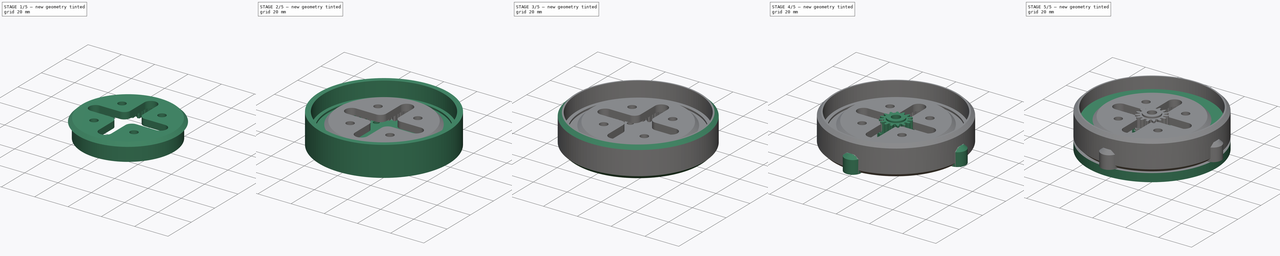
[diagram: build sequence overview — one tinted view per stage of 5, left to right]
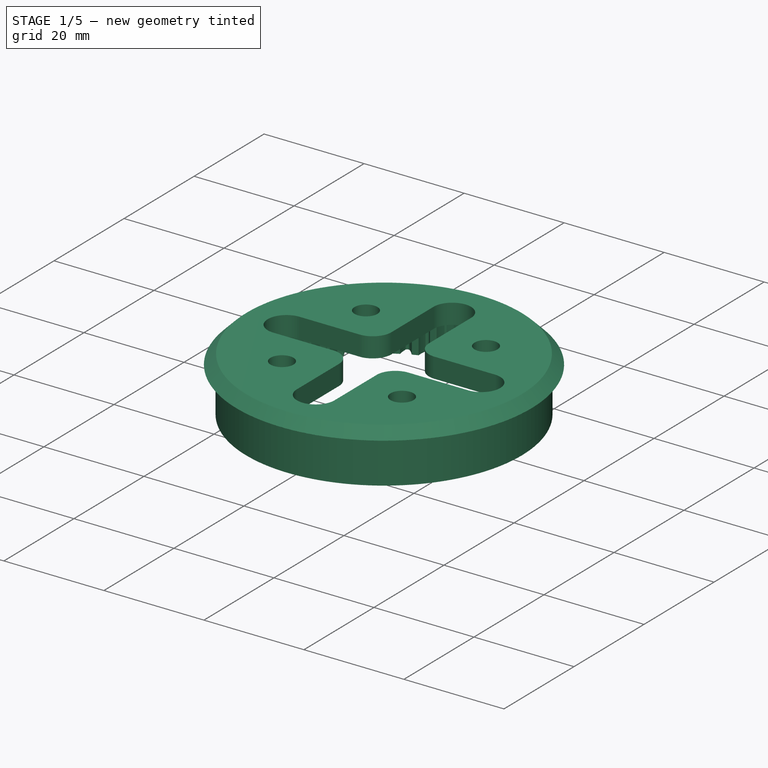
[diagram: stage 1 of 5 — iso view after this stage's code; geometry added in this stage tinted green]
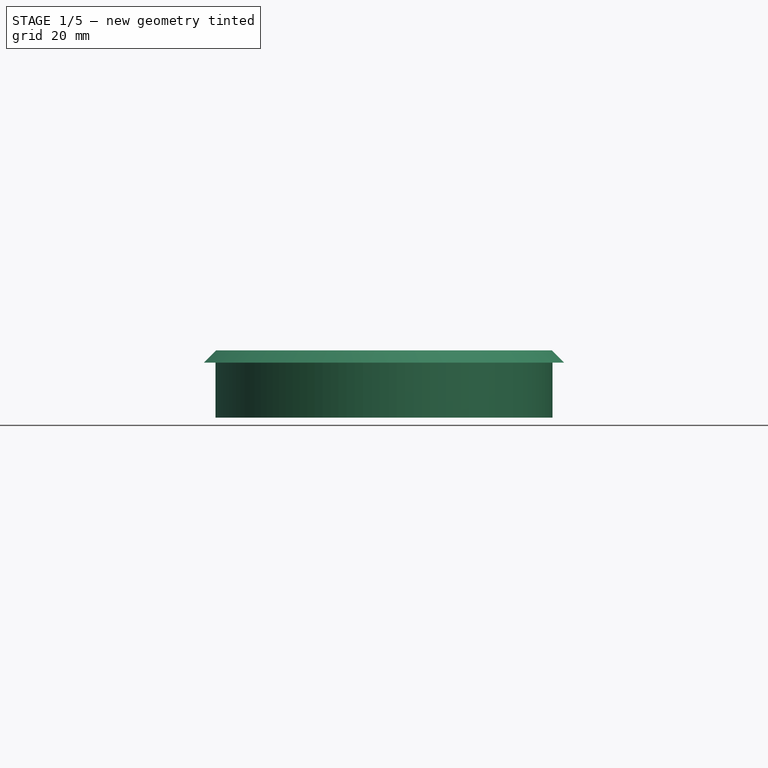
[diagram: stage 1 of 5 — front view after this stage's code; geometry added in this stage tinted green]
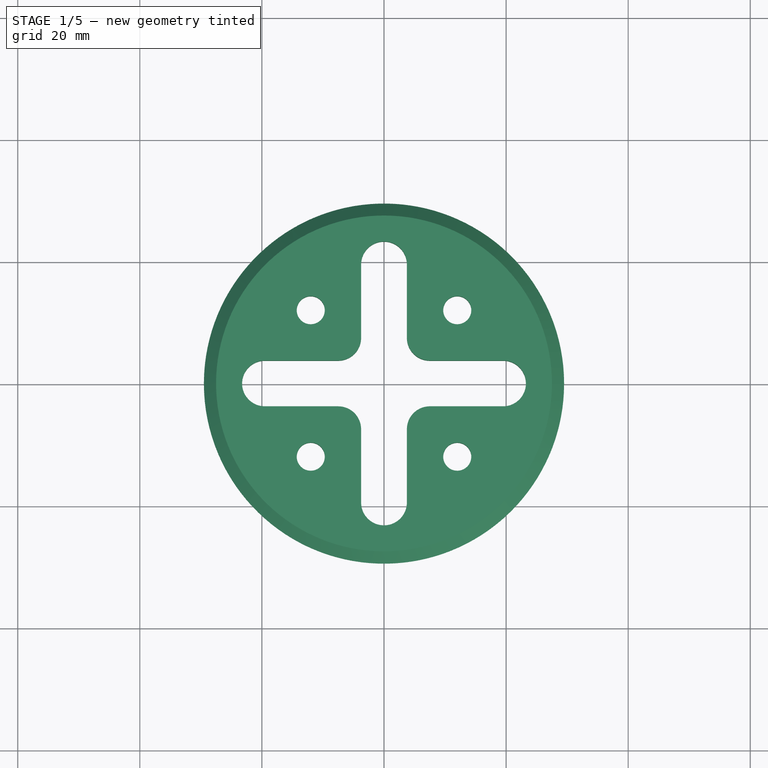
[diagram: stage 1 of 5 — top view after this stage's code; geometry added in this stage tinted green]
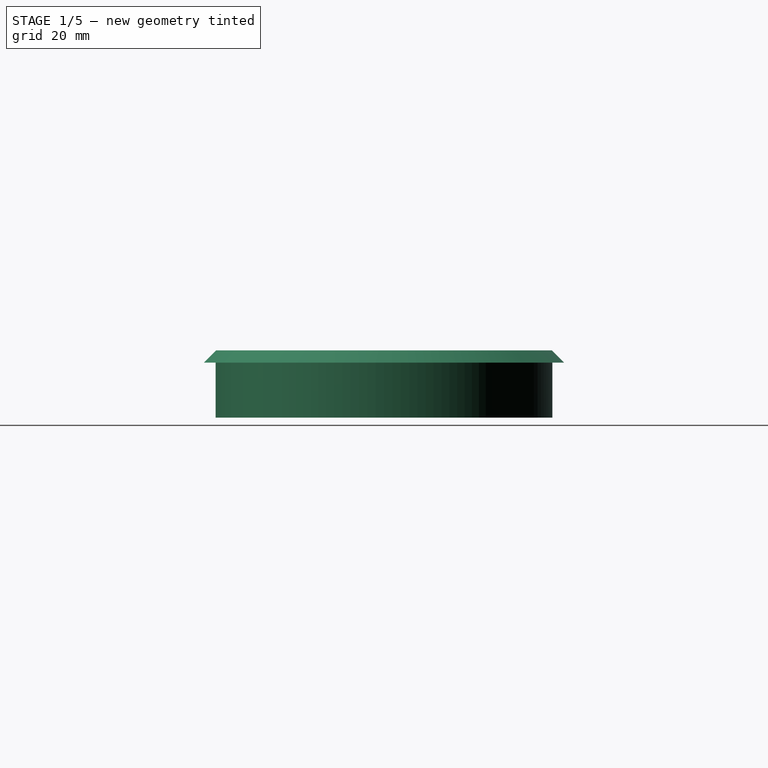
[diagram: stage 1 of 5 — right view after this stage's code; geometry added in this stage tinted green]
FCSTD DOCUMENT  (FreeCAD 2023.131R26244 +5365 (Git))
Label: gearbox-v4
License: All rights reserved
LicenseURL: http://en.wikipedia.org/wiki/All_rights_reserved
objects: Sketcher::SketchObject×23, PartDesign::Pad×13, PartDesign::Pocket×12, PartDesign::Body×7, Part::Part2DObjectPython×6, PartDesign::Chamfer×5, PartDesign::Groove×3, App::Link×2, PartDesign::Hole×2, PartDesign::PolarPattern×2, Spreadsheet::Sheet×1, PartDesign::ShapeBinder×1
note: 171 computed .brp shape members not serialized (recipe doc carries the construction recipe); baked Part::Feature solids carry a one-line shape summary decoded from their .brp

FEATURE [Part::Part2DObjectPython] InvoluteGear002  label="s2-sun-gear"  # Draft 2D object (typed FeaturePython)
  ExternalGear = true
  HighPrecision = false
  InvalidShape = false
  Modules = 0.99
  NumberOfTeeth = 18
  PressureAngle = 20
  TreeRank = 0
  ValidateShape = true
  expr: Modules = <<sp>>.s2_module - <<sp>>.s2_clearance
  expr: NumberOfTeeth = <<sp>>.s2sun_teeth
FEATURE [Part::Part2DObjectPython] InvoluteGear003  label="s2-ring-gear"  # Draft 2D object (typed FeaturePython)
  ExternalGear = false
  HighPrecision = false
  InvalidShape = false
  Modules = 1.01
  NumberOfTeeth = 48
  PressureAngle = 20
  TreeRank = 0
  ValidateShape = true
  expr: Modules = <<sp>>.s2_module + <<sp>>.s2_clearance
  expr: NumberOfTeeth = <<sp>>.s2ring_teeth
FEATURE [Sketcher::SketchObject] Sketch001
  ArcFitTolerance = 0
  AttachmentSupport = -> [XY_Plane002]
  ExternalBSplineMaxDegree = 0
  ExternalBSplineTolerance = 0
  FullyConstrained = true
  InternalTolerance = 1e-06
  InvalidShape = false
  MakeInternals = false
  MapMode = 5
  Support = -> [XY_Plane002]
  TreeRank = 0
  ValidateShape = true
  sketch-geometry (1):
    g0: Circle CenterX=0 CenterY=0 CenterZ=0 NormalX=0 NormalY=0 NormalZ=1 AngleXU=0 Radius=27.6
  constraints (2):
    c: Coincident(g0,g-1)
    c: Diameter(g0) = 55.2  'outer_diameter (55.2 for good fit)'
FEATURE [PartDesign::Pad] Pad002
  AddSubType = 0
  AlongSketchNormal = false
  AutoTaperInnerAngle = true
  CheckUpToFaceLimits = true
  ClaimChildren = false
  Direction = (0,0,1)
  Fit = 0
  FitJoin = 0
  InnerFit = 0
  InnerFitJoin = 0
  InvalidShape = false
  Length = 11
  Length2 = 0
  NewSolid = false
  Profile = -> Sketch001
  Suppress = false
  TaperInnerAngle = 0
  TaperInnerAngleRev = 0
  TreeRank = 0
  Type = 0
  ValidateShape = true
  _ProfileBasedVersion = 0
FEATURE [PartDesign::Pocket] Pocket001
  AddSubType = 1
  AutoTaperInnerAngle = true
  BaseFeature = -> Pad002
  CheckUpToFaceLimits = true
  ClaimChildren = false
  Fit = 0
  FitJoin = 0
  InnerFit = 0
  InnerFitJoin = 0
  InvalidShape = false
  Length = 7
  Length2 = 100
  NewSolid = false
  Profile = -> InvoluteGear003
  Reversed = true
  Suppress = false
  TaperInnerAngle = 0
  TaperInnerAngleRev = 0
  TreeRank = 0
  Type = 0
  ValidateShape = true
  _ProfileBasedVersion = 0
  _Version = 0
FEATURE [PartDesign::Body] Body006  label="Bearing"
  AutoGroupSolids = false
  ClaimAllChildren = false
  ExportMode = 0
  Group = -> [Sketch011,Pad010]
  InvalidShape = false
  Origin = -> Origin006
  Placement = pos=(0,0,7) rot=(0,0,1;0rad)
  Tip = -> Pad010
  TreeRank = 0
  ValidateShape = true
  _ExportChildren = -> [Pad010]
  _GroupVersion = 1
FEATURE [Sketcher::SketchObject] Sketch012
  ArcFitTolerance = 0
  AttachmentSupport = -> [Pocket001]
  ExternalBSplineMaxDegree = 0
  ExternalBSplineTolerance = 0
  FullyConstrained = true
  InternalTolerance = 1e-06
  InvalidShape = false
  MakeInternals = false
  MapMode = 5
  Placement = pos=(0,0,11) rot=(0,0,1;0rad)
  Support = -> [Pocket001]
  TreeRank = 0
  ValidateShape = true
  sketch-geometry (2):
    g0: Circle CenterX=0 CenterY=0 CenterZ=0 NormalX=0 NormalY=0 NormalZ=1 AngleXU=0 Radius=27.6
    g1: Circle CenterX=0 CenterY=0 CenterZ=0 NormalX=0 NormalY=0 NormalZ=1 AngleXU=0 Radius=29.5
  constraints (4):
    c: Coincident(g0,g-1)
    c: Diameter(g0) = 55.2
    c: Coincident(g1,g0)
    c: Diameter(g1) = 59
FEATURE [PartDesign::Pad] Pad011
  AddSubType = 0
  AlongSketchNormal = false
  AutoTaperInnerAngle = true
  BaseFeature = -> Pocket001
  CheckUpToFaceLimits = true
  ClaimChildren = false
  Direction = (0,0,1)
  Fit = 0
  FitJoin = 0
  InnerFit = 0
  InnerFitJoin = 0
  InvalidShape = false
  Length = 2
  Length2 = 100
  NewSolid = false
  Profile = -> Sketch012
  Reversed = true
  Suppress = false
  TaperInnerAngle = 0
  TaperInnerAngleRev = 0
  TreeRank = 0
  Type = 0
  ValidateShape = true
  _ProfileBasedVersion = 0
FEATURE [PartDesign::Body] Body007  label="Bottom cap"
  AutoGroupSolids = false
  ClaimAllChildren = false
  ExportMode = 0
  Group = -> [ShapeBinder001,Pad015,Sketch015,Pocket007,Sketch016,Pocket008,Sketch017,Hole]
  InvalidShape = false
  Origin = -> Origin007
  Tip = -> Hole
  TreeRank = 0
  ValidateShape = true
  _ExportChildren = -> [Pad015,Pocket007,Pocket008,Hole]
  _GroupVersion = 1
FEATURE [Sketcher::SketchObject] Sketch019
  ArcFitTolerance = 0
  ExternalBSplineMaxDegree = 0
  ExternalBSplineTolerance = 0
  FullyConstrained = true
  InternalTolerance = 1e-06
  InvalidShape = false
  MakeInternals = false
  MapMode = 5
  Placement = pos=(0,0,11) rot=(0,0,1;0rad)
  TreeRank = 0
  ValidateShape = true
  sketch-geometry (1):
    g0: Circle CenterX=-12 CenterY=12 CenterZ=0 NormalX=0 NormalY=0 NormalZ=1 AngleXU=0 Radius=2.3
  constraints (3):
    c: Diameter(g0) = 4.6
    c: DistanceX(g0,g-1) = 12
    c: DistanceY(g-1,g0) = 12
FEATURE [PartDesign::Pocket] Pocket009
  AddSubType = 1
  AutoTaperInnerAngle = true
  BaseFeature = -> Pad011
  CheckUpToFaceLimits = true
  ClaimChildren = false
  Fit = 0
  FitJoin = 0
  InnerFit = 0
  InnerFitJoin = 0
  InvalidShape = false
  Length = 4.01
  Length2 = 100
  NewSolid = false
  Profile = -> Sketch019
  Suppress = false
  TaperInnerAngle = 0
  TaperInnerAngleRev = 0
  TreeRank = 0
  Type = 0
  ValidateShape = true
  _ProfileBasedVersion = 0
  _Version = 0
FEATURE [PartDesign::Body] Body001  label="S1-Ring"
  AutoGroupSolids = false
  ClaimAllChildren = false
  ExportMode = 0
  Group = -> [Sketch,Pad001,InvoluteGear001,Pocket,Sketch013,Pad012,Sketch014,Pad013,Sketch030,Hole001,Sketch031,Sketch032,Pocket013,Pocket014,Chamfer001,Chamfer002,Sketch033,Pad016,Sketch034,Pocket015,Chamfer003,Chamfer004,PolarPattern]
  InvalidShape = false
  Origin = -> Origin001
  Placement = pos=(0,0,0) rot=(0,0,1;0.069813rad)
  Tip = -> PolarPattern
  TreeRank = 0
  ValidateShape = true
  _ExportChildren = -> [Pad001,Pocket,Pad012,Pad013,Hole001,Pocket013,Pocket014,Chamfer001,Chamfer002,Pad016,Pocket015,Chamfer003,Chamfer004,PolarPattern]
  _GroupVersion = 1
FEATURE [PartDesign::PolarPattern] PolarPattern001
  AddSubType = 0
  Angle = 360
  Axis = -> Sketch019 [N_Axis]
  BaseFeature = -> Pocket009
  CopyShape = false
  FixShape = 1
  InvalidShape = false
  NewSolid = false
  Occurrences = 4
  OriginalSubs = -> [Pocket009]
  Originals = -> [Pocket009]
  ParallelTransform = true
  SubTransform = true
  Suppress = false
  TreeRank = 27
  ValidateShape = false
  _Version = 3
FEATURE [PartDesign::Pocket] Pocket010
  AddSubType = 1
  AutoTaperInnerAngle = true
  BaseFeature = -> PolarPattern001
  CheckUpToFaceLimits = true
  ClaimChildren = false
  Fit = 0
  FitJoin = 0
  InnerFit = 0
  InnerFitJoin = 0
  InvalidShape = false
  Length = 8
  Length2 = 100
  NewSolid = false
  Profile = -> Sketch020
  Suppress = false
  TaperInnerAngle = 0
  TaperInnerAngleRev = 0
  TreeRank = 0
  Type = 0
  ValidateShape = true
  _ProfileBasedVersion = 0
  _Version = 0
FEATURE [PartDesign::Chamfer] Chamfer
  AddSubType = 0
  Angle = 45
  Base = -> Pocket010 [Edge870]
  BaseFeature = -> Pocket010
  ChamferType = 0
  FixShape = 1
  FlipDirection = false
  InvalidShape = false
  NewSolid = false
  Size = 1.99
  Size2 = 1
  SupportTransform = false
  Suppress = false
  TreeRank = 28
  ValidateShape = false
FEATURE [PartDesign::Body] Body002  label="S2-Ring"
  AutoGroupSolids = false
  ClaimAllChildren = false
  ExportMode = 0
  Group = -> [Sketch001,Pad002,InvoluteGear003,Pocket001,Sketch012,Pad011,Sketch019,Pocket009,Sketch020,PolarPattern001,Pocket010,Chamfer]
  InvalidShape = false
  Origin = -> Origin002
  Placement = pos=(0,0,7) rot=(0,0,1;0.069813rad)
  Tip = -> Chamfer
  TreeRank = 0
  ValidateShape = true
  _ExportChildren = -> [Pad002,Pocket001,Pad011,Pocket009,PolarPattern001,Pocket010,Chamfer]
  _GroupVersion = 1
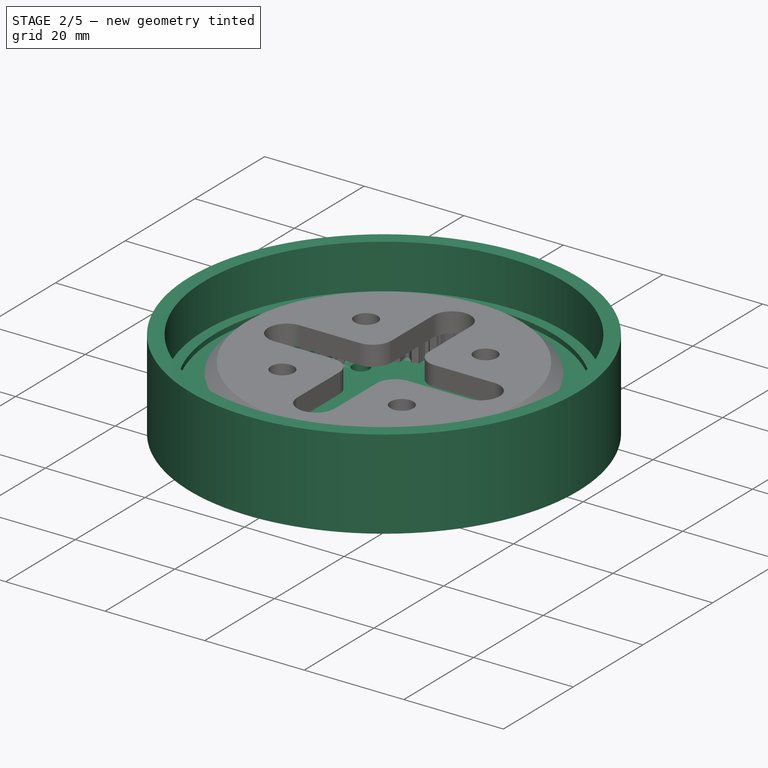
[diagram: stage 2 of 5 — iso view after this stage's code; geometry added in this stage tinted green]
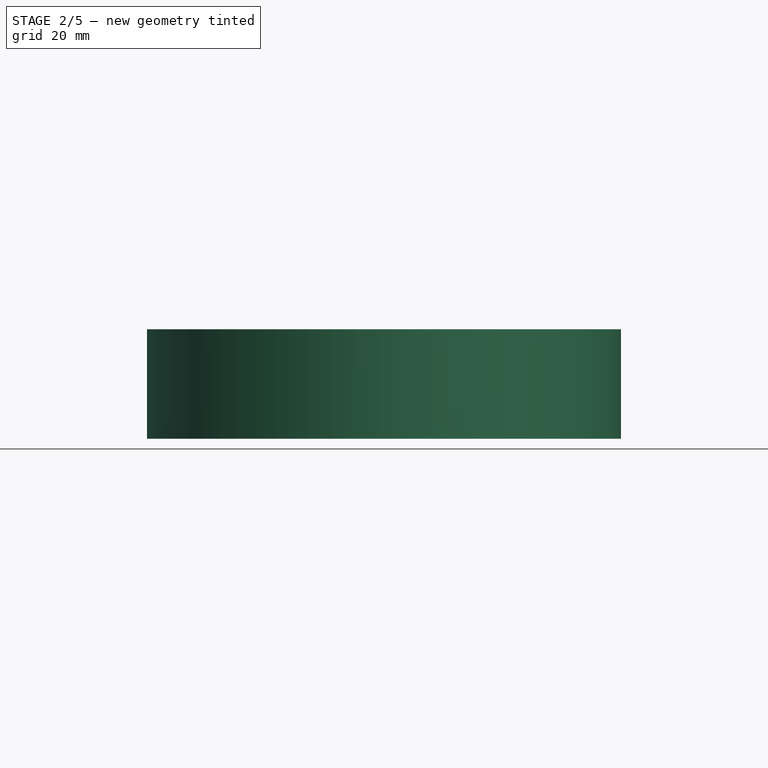
[diagram: stage 2 of 5 — front view after this stage's code; geometry added in this stage tinted green]
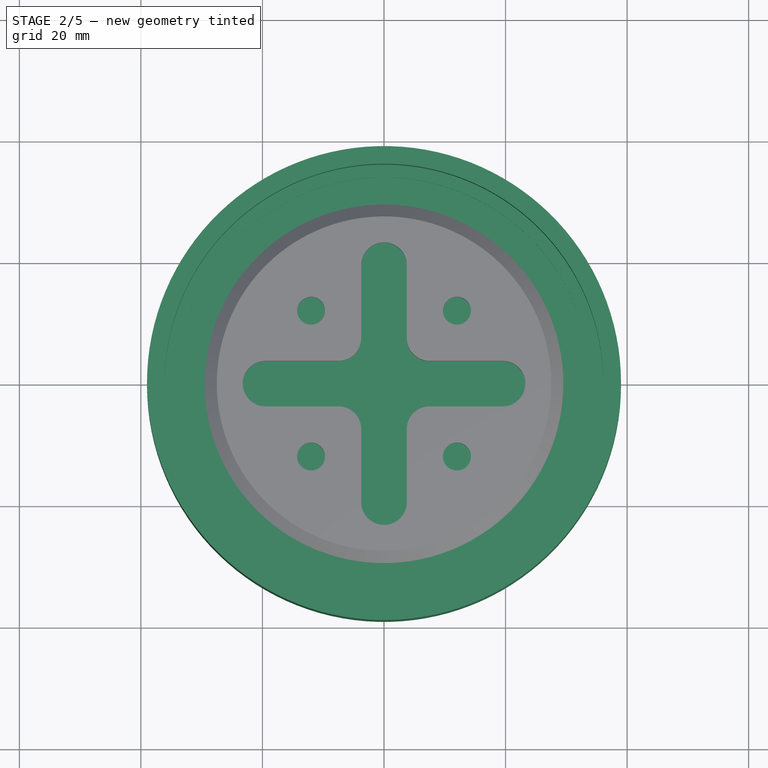
[diagram: stage 2 of 5 — top view after this stage's code; geometry added in this stage tinted green]
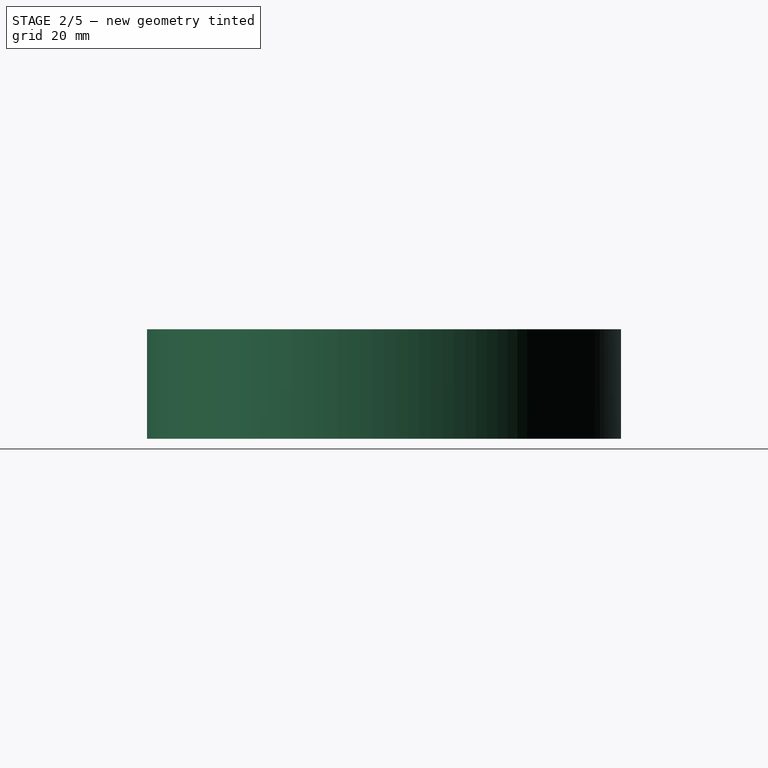
[diagram: stage 2 of 5 — right view after this stage's code; geometry added in this stage tinted green]
FEATURE [Spreadsheet::Sheet] Spreadsheet  label="sp"
  PythonMode = false
  ShowCells = 0
  TreeRank = 0
  cells = D6=Teeth; I6=Gear diameter; A7=Clearance; B7=Ratio; D7=Ring; E7=Sun; F7=Planet; H7=Module; I7=Ring; J7=Sun; K7=Planet; M7=Dist to planet; A8(s1_clearance)=0.01; B8(transmission_ratio)==1 / ((D9 - D8 / F8 * F9) / D9 * E8 / (D8 + E8)); D8(s1ring_teeth)==E8 + F8 * 2; E8(s1sun_teeth)=15; F8(s1planet_teeth)=15; H8(s1_module)=1.1; I8(s1ring_diameter)==D8 * H8; J8(s1sun_diameter)==E8 * H8; K8(s1planet_diameter)==F8 * H8; M8(sun_to_planet_distance)==(J8 + K8) / 2; A9(s2_clearance)=0.01; D9(s2ring_teeth)==E9 + F9 * 2; E9(s2sun_teeth)=18; F9(s2planet_teeth)=15; H9(s2_module)==(E8 + F8) / (E9 + F9) * H8; I9(s2ring_diameter)==D9 * H9; J9(s2sun_diameter)==E9 * H9; K9(s2planet_diameter)==F9 * H9; A11=These must be 0 for proper meshing; B11==(D8 + D9) % 3; B12==(D9 + E9) % 3; E13=P1; F13=P2; G13=P3; D14=x; E14(planet1_x)==M8 * cos(0); F14(planet2_x)==M8 * cos(120); G14(planet3_x)==M8 * cos(240); D15=y; E15(planet1_y)==M8 * sin(0); F15(planet2_y)==M8 * sin(120); G15(planet3_y)==M8 * sin(240)
FEATURE [Part::Part2DObjectPython] InvoluteGear  label="s1-sun-gear"  # Draft 2D object (typed FeaturePython)
  ExternalGear = true
  HighPrecision = false
  InvalidShape = false
  Modules = 1.09
  NumberOfTeeth = 15
  PressureAngle = 20
  TreeRank = 0
  ValidateShape = true
  expr: Modules = <<sp>>.s1_module - <<sp>>.s1_clearance
  expr: NumberOfTeeth = <<sp>>.s1sun_teeth
FEATURE [Part::Part2DObjectPython] InvoluteGear001  label="s1-ring-outline"  # Draft 2D object (typed FeaturePython)
  ExternalGear = false
  HighPrecision = false
  InvalidShape = false
  Modules = 1.11
  NumberOfTeeth = 45
  PressureAngle = 20
  TreeRank = 0
  ValidateShape = true
  expr: Modules = <<sp>>.s1_module + <<sp>>.s1_clearance
  expr: NumberOfTeeth = <<sp>>.s1ring_teeth
FEATURE [Sketcher::SketchObject] Sketch
  ArcFitTolerance = 0
  AttachmentSupport = -> [XY_Plane001]
  ExternalBSplineMaxDegree = 0
  ExternalBSplineTolerance = 0
  FullyConstrained = true
  InternalTolerance = 1e-06
  InvalidShape = false
  MakeInternals = false
  MapMode = 5
  Support = -> [XY_Plane001]
  TreeRank = 0
  ValidateShape = true
  sketch-geometry (1):
    g0: Circle CenterX=0 CenterY=0 CenterZ=0 NormalX=0 NormalY=0 NormalZ=1 AngleXU=0 Radius=39
  constraints (2):
    c: Coincident(g0,g-1)
    c: Diameter(g0) = 78  'outer_diameter'
FEATURE [PartDesign::Pad] Pad001
  AddSubType = 0
  AlongSketchNormal = false
  AutoTaperInnerAngle = true
  CheckUpToFaceLimits = true
  ClaimChildren = false
  Direction = (0,0,1)
  Fit = 0
  FitJoin = 0
  InnerFit = 0
  InnerFitJoin = 0
  InvalidShape = false
  Length = 6
  Length2 = 2
  NewSolid = false
  Profile = -> Sketch
  Suppress = false
  TaperInnerAngle = 0
  TaperInnerAngleRev = 0
  TreeRank = 0
  Type = 4
  ValidateShape = true
  _ProfileBasedVersion = 0
FEATURE [PartDesign::Pocket] Pocket
  AddSubType = 1
  AutoTaperInnerAngle = true
  BaseFeature = -> Pad001
  CheckUpToFaceLimits = true
  ClaimChildren = false
  Fit = 0
  FitJoin = 0
  InnerFit = 0
  InnerFitJoin = 0
  InvalidShape = false
  Length = 10
  Length2 = 100
  NewSolid = false
  Profile = -> InvoluteGear001
  Reversed = true
  Suppress = false
  TaperInnerAngle = 0
  TaperInnerAngleRev = 0
  TreeRank = 0
  Type = 0
  ValidateShape = true
  _ProfileBasedVersion = 0
  _Version = 0
FEATURE [Sketcher::SketchObject] Sketch013
  ArcFitTolerance = 0
  AttachmentSupport = -> [Pocket]
  ExternalBSplineMaxDegree = 0
  ExternalBSplineTolerance = 0
  FullyConstrained = true
  InternalTolerance = 1e-06
  InvalidShape = false
  MakeInternals = false
  MapMode = 5
  Placement = pos=(0,0,6) rot=(0,0,1;0rad)
  Support = -> [Pocket]
  TreeRank = 0
  ValidateShape = true
  sketch-geometry (2):
    g0: Circle CenterX=0 CenterY=0 CenterZ=0 NormalX=0 NormalY=0 NormalZ=1 AngleXU=0 Radius=34
    g1: Circle CenterX=0 CenterY=0 CenterZ=0 NormalX=0 NormalY=0 NormalZ=1 AngleXU=0 Radius=36.1
  constraints (4):
    c: Coincident(g0,g-1)
    c: Diameter(g0) = 68
    c: Coincident(g1,g0)
    c: Diameter(g1) = 72.2
FEATURE [PartDesign::Pad] Pad012
  AddSubType = 0
  AlongSketchNormal = false
  AutoTaperInnerAngle = true
  BaseFeature = -> Pocket
  CheckUpToFaceLimits = true
  ClaimChildren = false
  Direction = (0,0,1)
  Fit = 0
  FitJoin = 0
  InnerFit = 0
  InnerFitJoin = 0
  InvalidShape = false
  Length = 1
  Length2 = 100
  NewSolid = false
  Profile = -> Sketch013
  Suppress = false
  TaperInnerAngle = 0
  TaperInnerAngleRev = 0
  TreeRank = 0
  Type = 0
  ValidateShape = true
  _ProfileBasedVersion = 0
FEATURE [Sketcher::SketchObject] Sketch014
  ArcFitTolerance = 0
  AttachmentSupport = -> [Pad012]
  ExternalBSplineMaxDegree = 0
  ExternalBSplineTolerance = 0
  FullyConstrained = true
  InternalTolerance = 1e-06
  InvalidShape = false
  MakeInternals = false
  MapMode = 5
  Placement = pos=(0,0,6) rot=(0,0,1;0rad)
  Support = -> [Pad012]
  TreeRank = 0
  ValidateShape = true
  sketch-geometry (2):
    g0: Circle CenterX=0 CenterY=0 CenterZ=0 NormalX=0 NormalY=0 NormalZ=1 AngleXU=0 Radius=36.1
    g1: Circle CenterX=0 CenterY=0 CenterZ=0 NormalX=0 NormalY=0 NormalZ=1 AngleXU=0 Radius=39
  constraints (4):
    c: Coincident(g0,g-1)
    c: Diameter(g0) = 72.2
    c: Coincident(g1,g0)
    c: Diameter(g1) = 78
FEATURE [PartDesign::Pad] Pad013
  AddSubType = 0
  AlongSketchNormal = false
  AutoTaperInnerAngle = true
  BaseFeature = -> Pad012
  CheckUpToFaceLimits = true
  ClaimChildren = false
  Direction = (0,0,1)
  Fit = 0
  FitJoin = 0
  InnerFit = 0
  InnerFitJoin = 0
  InvalidShape = false
  Length = 10
  Length2 = 100
  NewSolid = false
  Profile = -> Sketch014
  Suppress = false
  TaperInnerAngle = 0
  TaperInnerAngleRev = 0
  TreeRank = 0
  Type = 0
  ValidateShape = true
  _ProfileBasedVersion = 0
FEATURE [PartDesign::ShapeBinder] ShapeBinder001
  InvalidShape = false
  Placement = pos=(0,0,-2) rot=(0,0,1;0rad)
  Support = -> [Pad013]
  TraceSupport = false
  TreeRank = 0
  ValidateShape = true
FEATURE [PartDesign::Pad] Pad015
  AddSubType = 0
  AlongSketchNormal = false
  AutoTaperInnerAngle = true
  CheckUpToFaceLimits = true
  ClaimChildren = false
  Direction = (0,0,1)
  Fit = 0
  FitJoin = 0
  InnerFit = 0
  InnerFitJoin = 0
  InvalidShape = false
  Length = 5
  Length2 = 100
  NewSolid = false
  Profile = -> ShapeBinder001
  Reversed = true
  Suppress = false
  TaperInnerAngle = 0
  TaperInnerAngleRev = 0
  TreeRank = 0
  Type = 0
  ValidateShape = true
  _ProfileBasedVersion = 0
FEATURE [Sketcher::SketchObject] Sketch015
  ArcFitTolerance = 0
  AttachmentSupport = -> [Pad015]
  ExternalBSplineMaxDegree = 0
  ExternalBSplineTolerance = 0
  FullyConstrained = true
  InternalTolerance = 1e-06
  InvalidShape = false
  MakeInternals = false
  MapMode = 5
  Placement = pos=(0,0,-7) rot=(1,0,0;3.14159rad)
  Support = -> [Pad015]
  TreeRank = 0
  ValidateShape = true
  sketch-geometry (1):
    g0: Circle CenterX=0 CenterY=0 CenterZ=0 NormalX=0 NormalY=0 NormalZ=1 AngleXU=0 Radius=11.25
  constraints (2):
    c: Coincident(g0,g-1)
    c: Diameter(g0) = 22.5
FEATURE [PartDesign::Pocket] Pocket007
  AddSubType = 1
  AutoTaperInnerAngle = true
  BaseFeature = -> Pad015
  CheckUpToFaceLimits = true
  ClaimChildren = false
  Fit = 0
  FitJoin = 0
  InnerFit = 0
  InnerFitJoin = 0
  InvalidShape = false
  Length = 2.2
  Length2 = 100
  NewSolid = false
  Profile = -> Sketch015
  Suppress = false
  TaperInnerAngle = 0
  TaperInnerAngleRev = 0
  TreeRank = 0
  Type = 0
  ValidateShape = true
  _ProfileBasedVersion = 0
  _Version = 0
FEATURE [Sketcher::SketchObject] Sketch016
  ArcFitTolerance = 0
  AttachmentSupport = -> [Pocket007]
  ExternalBSplineMaxDegree = 0
  ExternalBSplineTolerance = 0
  FullyConstrained = true
  InternalTolerance = 1e-06
  InvalidShape = false
  MakeInternals = false
  MapMode = 5
  Placement = pos=(0,0,-2) rot=(0,0,1;0rad)
  Support = -> [Pocket007]
  TreeRank = 0
  ValidateShape = true
  sketch-geometry (1):
    g0: Circle CenterX=0 CenterY=0 CenterZ=0 NormalX=0 NormalY=0 NormalZ=1 AngleXU=0 Radius=3.5
  constraints (2):
    c: Coincident(g0,g-1)
    c: Diameter(g0) = 7
FEATURE [PartDesign::Pocket] Pocket008
  AddSubType = 1
  AutoTaperInnerAngle = true
  BaseFeature = -> Pocket007
  CheckUpToFaceLimits = true
  ClaimChildren = false
  Fit = 0
  FitJoin = 0
  InnerFit = 0
  InnerFitJoin = 0
  InvalidShape = false
  Length = 5
  Length2 = 100
  NewSolid = false
  Profile = -> Sketch016
  Suppress = false
  TaperInnerAngle = 0
  TaperInnerAngleRev = 0
  TreeRank = 0
  Type = 0
  ValidateShape = true
  _ProfileBasedVersion = 0
  _Version = 0
FEATURE [PartDesign::Body] Body005  label="Planet"
  AutoGroupSolids = false
  ClaimAllChildren = false
  ExportMode = 0
  Group = -> [InvoluteGear005,Pad008,InvoluteGear004,Pad009,Sketch027,Sketch029,Pocket012,Groove003]
  InvalidShape = false
  Origin = -> Origin005
  Placement = pos=(16.5,0,0) rot=(0,0,1;0rad)
  Tip = -> Groove003
  TreeRank = 0
  ValidateShape = true
  _ExportChildren = -> [Pad008,Pad009,Pocket012,Groove003]
  _GroupVersion = 1
  expr: Placement.Base.x = <<sp>>.E14
  expr: Placement.Base.y = <<sp>>.E15
FEATURE [Sketcher::SketchObject] Sketch030
  ArcFitTolerance = 0
  AttachmentSupport = -> [Pocket008]
  ExternalBSplineMaxDegree = 0
  ExternalBSplineTolerance = 0
  FullyConstrained = true
  InternalTolerance = 1e-06
  InvalidShape = false
  MakeInternals = false
  MapMode = 5
  Placement = pos=(0,0,-2) rot=(0,0,1;0rad)
  Support = -> [Pocket008]
  TreeRank = 9
  ValidateShape = true
  sketch-geometry (9):
    g0: LineSegment [constr] StartX=-15.5 StartY=-15.5 StartZ=0 EndX=-15.5 EndY=15.5 EndZ=0
    g1: LineSegment [constr] StartX=-15.5 StartY=15.5 StartZ=0 EndX=15.5 EndY=15.5 EndZ=0
    g2: LineSegment [constr] StartX=15.5 StartY=15.5 StartZ=0 EndX=15.5 EndY=-15.5 EndZ=0
    g3: LineSegment [constr] StartX=15.5 StartY=-15.5 StartZ=0 EndX=-15.5 EndY=-15.5 EndZ=0
    g4: GeomPoint [constr] X=2e-16 Y=3e-16 Z=0
    g5: Circle CenterX=-15.5 CenterY=15.5 CenterZ=0 NormalX=0 NormalY=0 NormalZ=1 AngleXU=0 Radius=2.5
    g6: Circle CenterX=15.5 CenterY=15.5 CenterZ=0 NormalX=0 NormalY=0 NormalZ=1 AngleXU=0 Radius=2.5
    g7: Circle CenterX=15.5 CenterY=-15.5 CenterZ=0 NormalX=0 NormalY=0 NormalZ=1 AngleXU=0 Radius=2.5
    g8: Circle CenterX=-15.5 CenterY=-15.5 CenterZ=0 NormalX=0 NormalY=0 NormalZ=1 AngleXU=0 Radius=2.5
  constraints (20):
    c: Coincident(g0,g1)
    c: Coincident(g1,g2)
    c: Coincident(g2,g3)
    c: Coincident(g3,g0)
    c: Horizontal(g1)
    c: Horizontal(g3)
    c: Vertical(g0)
    c: Vertical(g2)
    c: Symmetric(g1,g0,g4)
    c: Coincident(g4,g-1)
    c: Equal(g1,g2)
    c: Distance(g1) = 31
    c: Coincident(g5,g0)
    c: Coincident(g6,g1)
    c: Coincident(g7,g2)
    c: Coincident(g8,g0)
    c: Equal(g8,g7)
    c: Equal(g7,g6)
    c: Equal(g6,g5)
    c: Diameter(g6) = 5
FEATURE [PartDesign::Hole] Hole001
  AddSubType = 1
  BaseFeature = -> Pad013
  ClaimChildren = false
  CustomThreadClearance = 0
  Depth = 25
  DepthType = 0
  Diameter = 3.4
  DrillForDepth = false
  DrillPoint = 1
  DrillPointAngle = 118
  Fit = 0
  FitJoin = 0
  FixShape = 1
  HoleCutCountersinkAngle = 90
  HoleCutCustomValues = false
  HoleCutDepth = 0
  HoleCutDiameter = 6.1
  HoleCutType = 0
  InnerFit = 0
  InnerFitJoin = 0
  InvalidShape = false
  Linearize = true
  ModelThread = false
  NewSolid = false
  Profile = -> Sketch030
  Reversed = true
  Suppress = false
  Tapered = false
  TaperedAngle = 90
  ThreadClass = 0
  ThreadDepth = 25
  ThreadDepthType = 0
  ThreadDirection = 0
  ThreadFit = 0
  ThreadSize = 9
  ThreadType = 1
  Threaded = false
  TreeRank = 10
  UseCustomThreadClearance = false
  ValidateShape = false
  _ProfileBasedVersion = 1
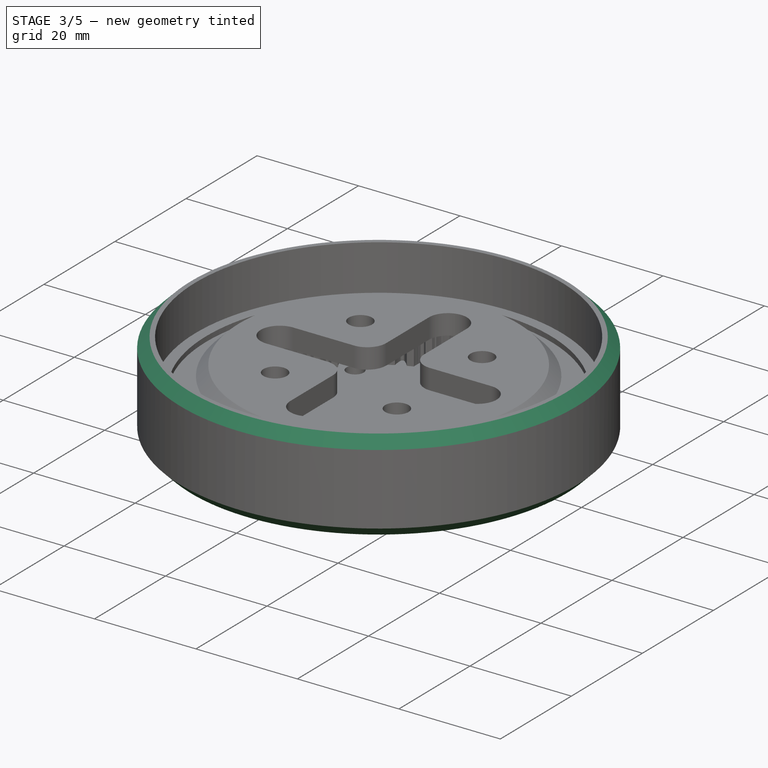
[diagram: stage 3 of 5 — iso view after this stage's code; geometry added in this stage tinted green]
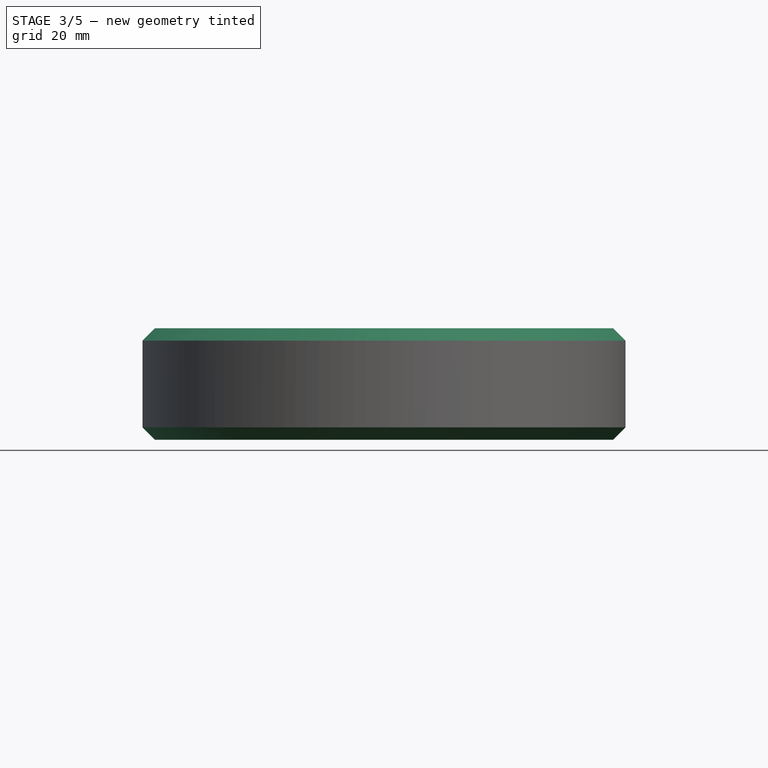
[diagram: stage 3 of 5 — front view after this stage's code; geometry added in this stage tinted green]
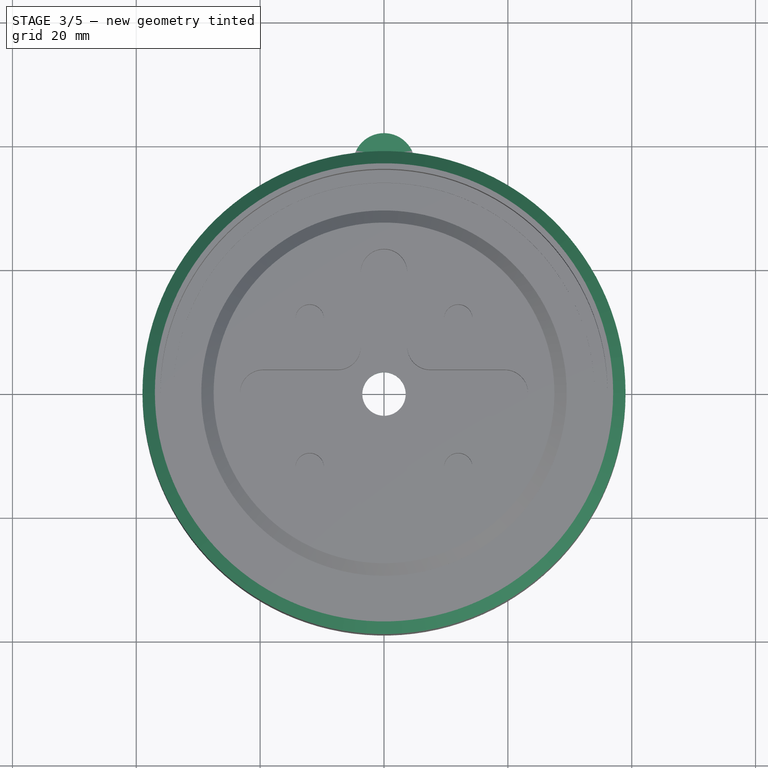
[diagram: stage 3 of 5 — top view after this stage's code; geometry added in this stage tinted green]
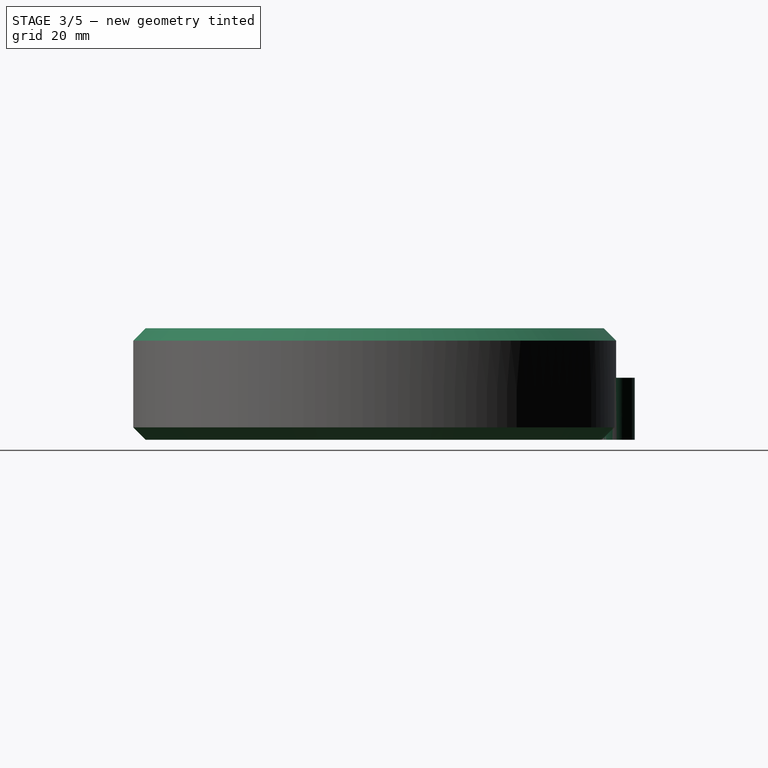
[diagram: stage 3 of 5 — right view after this stage's code; geometry added in this stage tinted green]
FEATURE [Sketcher::SketchObject] Sketch031
  ArcFitTolerance = 0
  AttachmentSupport = -> [Pad015]
  ExternalBSplineMaxDegree = 0
  ExternalBSplineTolerance = 0
  FullyConstrained = true
  InternalTolerance = 1e-06
  InvalidShape = false
  MakeInternals = false
  MapMode = 5
  Placement = pos=(0,0,-7) rot=(1,0,0;3.14159rad)
  Support = -> [Pad015]
  TreeRank = 13
  ValidateShape = true
  sketch-geometry (1):
    g0: Circle CenterX=0 CenterY=0 CenterZ=0 NormalX=0 NormalY=0 NormalZ=1 AngleXU=0 Radius=11.25
  constraints (2):
    c: Coincident(g0,g-1)
    c: Diameter(g0) = 22.5
FEATURE [Sketcher::SketchObject] Sketch032
  ArcFitTolerance = 0
  AttachmentSupport = -> [Pocket007]
  ExternalBSplineMaxDegree = 0
  ExternalBSplineTolerance = 0
  FullyConstrained = true
  InternalTolerance = 1e-06
  InvalidShape = false
  MakeInternals = false
  MapMode = 5
  Placement = pos=(0,0,-2) rot=(0,0,1;0rad)
  Support = -> [Pocket007]
  TreeRank = 14
  ValidateShape = true
  sketch-geometry (1):
    g0: Circle CenterX=0 CenterY=0 CenterZ=0 NormalX=0 NormalY=0 NormalZ=1 AngleXU=0 Radius=3.5
  constraints (2):
    c: Coincident(g0,g-1)
    c: Diameter(g0) = 7
FEATURE [PartDesign::Pocket] Pocket013
  AddSubType = 1
  AutoTaperInnerAngle = true
  BaseFeature = -> Hole001
  CheckUpToFaceLimits = true
  ClaimChildren = false
  Fit = 0
  FitJoin = 0
  FixShape = 1
  InnerFit = 0
  InnerFitJoin = 0
  InvalidShape = false
  Length = 6
  Length2 = 100
  Linearize = true
  NewSolid = false
  Profile = -> Sketch031
  Suppress = false
  TaperInnerAngle = 0
  TaperInnerAngleRev = 0
  TreeRank = 15
  Type = 0
  ValidateShape = false
  _ProfileBasedVersion = 1
  _Version = 1
FEATURE [PartDesign::Pocket] Pocket014
  AddSubType = 1
  AutoTaperInnerAngle = true
  BaseFeature = -> Pocket013
  CheckUpToFaceLimits = true
  ClaimChildren = false
  Fit = 0
  FitJoin = 0
  FixShape = 1
  InnerFit = 0
  InnerFitJoin = 0
  InvalidShape = false
  Length = 3
  Length2 = 100
  Linearize = true
  NewSolid = false
  Profile = -> Sketch032
  Reversed = true
  Suppress = false
  TaperInnerAngle = 0
  TaperInnerAngleRev = 0
  TreeRank = 16
  Type = 0
  ValidateShape = false
  _ProfileBasedVersion = 1
  _Version = 1
FEATURE [PartDesign::Chamfer] Chamfer001
  AddSubType = 0
  Angle = 45
  Base = -> Pocket014 [Edge7]
  BaseFeature = -> Pocket014
  ChamferType = 0
  FixShape = 1
  FlipDirection = false
  InvalidShape = false
  NewSolid = false
  Size = 0.99
  Size2 = 1
  SupportTransform = false
  Suppress = false
  TreeRank = 17
  ValidateShape = false
FEATURE [PartDesign::Chamfer] Chamfer002
  AddSubType = 0
  Angle = 45
  Base = -> Chamfer001 [Edge2,Edge22]
  BaseFeature = -> Chamfer001
  ChamferType = 0
  FixShape = 1
  FlipDirection = false
  InvalidShape = false
  NewSolid = false
  Size = 2
  Size2 = 1
  SupportTransform = false
  Suppress = false
  TreeRank = 18
  ValidateShape = false
FEATURE [Sketcher::SketchObject] Sketch033
  ArcFitTolerance = 1e-06
  AttachmentSupport = -> [XY_Plane001]
  ExternalBSplineMaxDegree = 5
  ExternalBSplineTolerance = 0.0001
  FixShape = 1
  FullyConstrained = true
  InternalTolerance = 1e-06
  InvalidShape = false
  MakeInternals = false
  MapMode = 5
  Support = -> [XY_Plane001]
  TreeRank = 19
  ValidateShape = false
  sketch-geometry (3):
    g0: Circle [constr] CenterX=0 CenterY=0 CenterZ=0 NormalX=0 NormalY=0 NormalZ=1 AngleXU=0 Radius=37
    g1: ArcOfCircle CenterX=0 CenterY=37 CenterZ=0 NormalX=0 NormalY=0 NormalZ=1 AngleXU=0 Radius=5 StartAngle=6.21557 EndAngle=9.4924
    g2: LineSegment StartX=-4.98857 StartY=36.6622 StartZ=0 EndX=4.98857 EndY=36.6622 EndZ=0
  constraints (9):
    c: Coincident(g0,g-1)
    c: Diameter(g0) = 74
    c: PointOnObject(g1,g0)
    c: PointOnObject(g1,g0)
    c: PointOnObject(g1,g0)
    c: Diameter(g1) = 10
    c: PointOnObject(g1,g-2)
    c: Coincident(g2,g1)
    c: Coincident(g2,g1)
FEATURE [PartDesign::Pad] Pad016
  AddSubType = 0
  AlongSketchNormal = false
  AutoTaperInnerAngle = true
  BaseFeature = -> Chamfer002
  CheckUpToFaceLimits = true
  ClaimChildren = false
  Direction = (0,0,1)
  Fit = 0
  FitJoin = 0
  FixShape = 1
  InnerFit = 0
  InnerFitJoin = 0
  InvalidShape = false
  Length = 8
  Length2 = 2
  Linearize = true
  NewSolid = false
  Profile = -> Sketch033
  Suppress = false
  TaperInnerAngle = 0
  TaperInnerAngleRev = 0
  TreeRank = 20
  Type = 4
  ValidateShape = false
  _ProfileBasedVersion = 1
FEATURE [Sketcher::SketchObject] Sketch034
  ArcFitTolerance = 1e-06
  AttachmentSupport = -> [XY_Plane001]
  ExternalBSplineMaxDegree = 5
  ExternalBSplineTolerance = 0.0001
  FixShape = 1
  FullyConstrained = true
  InternalTolerance = 1e-06
  InvalidShape = false
  MakeInternals = false
  MapMode = 5
  Support = -> [XY_Plane001]
  TreeRank = 22
  ValidateShape = false
  sketch-geometry (3):
    g0: Circle [constr] CenterX=0 CenterY=0 CenterZ=0 NormalX=0 NormalY=0 NormalZ=1 AngleXU=0 Radius=37
    g1: Circle CenterX=0 CenterY=38 CenterZ=0 NormalX=0 NormalY=0 NormalZ=1 AngleXU=0 Radius=2.3
    g2: GeomPoint [constr] X=0 Y=37 Z=0
  constraints (7):
    c: Diameter(g0) = 74
    c: Coincident(g0,g-1)
    c: PointOnObject(g1,g-2)
    c: Diameter(g1) = 4.6
    c: PointOnObject(g2,g0)
    c: PointOnObject(g2,g-2)
    c: DistanceY(g2,g1) = 1
FEATURE [PartDesign::Pocket] Pocket015
  AddSubType = 1
  AutoTaperInnerAngle = true
  BaseFeature = -> Pad016
  CheckUpToFaceLimits = true
  ClaimChildren = false
  Fit = 0
  FitJoin = 0
  FixShape = 1
  InnerFit = 0
  InnerFitJoin = 0
  InvalidShape = false
  Length = 2.01
  Length2 = 2.4
  Linearize = true
  NewSolid = false
  Profile = -> Sketch034
  Suppress = false
  TaperInnerAngle = 0
  TaperInnerAngleRev = 0
  TreeRank = 23
  Type = 4
  ValidateShape = false
  _ProfileBasedVersion = 1
  _Version = 1
FEATURE [PartDesign::Chamfer] Chamfer003
  AddSubType = 0
  Angle = 45
  Base = -> Pocket015 [Edge17]
  BaseFeature = -> Pocket015
  ChamferType = 2
  FixShape = 1
  FlipDirection = false
  InvalidShape = false
  NewSolid = false
  Size = 0.4
  Size2 = 1
  SupportTransform = false
  Suppress = false
  TreeRank = 24
  ValidateShape = false
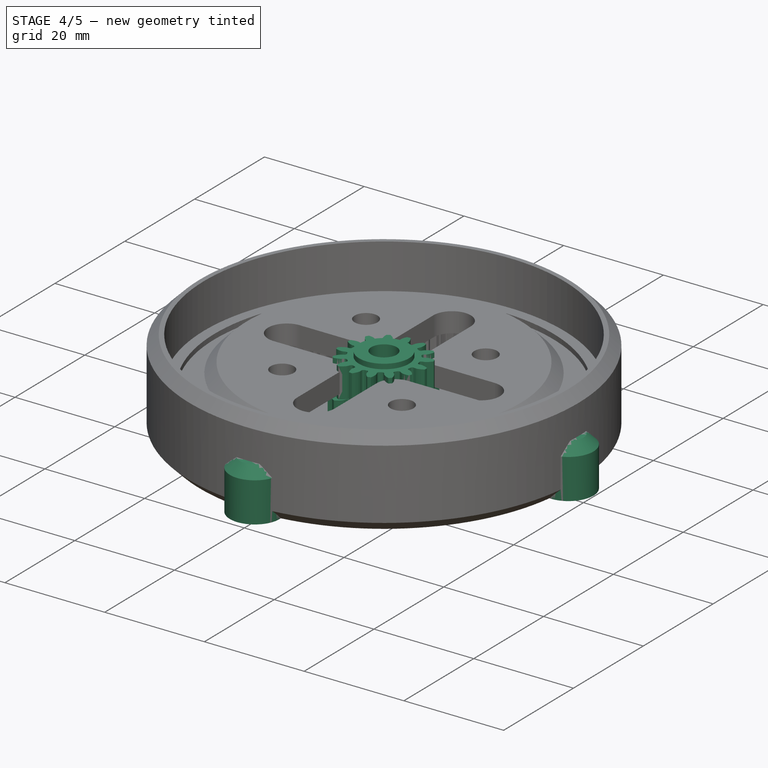
[diagram: stage 4 of 5 — iso view after this stage's code; geometry added in this stage tinted green]
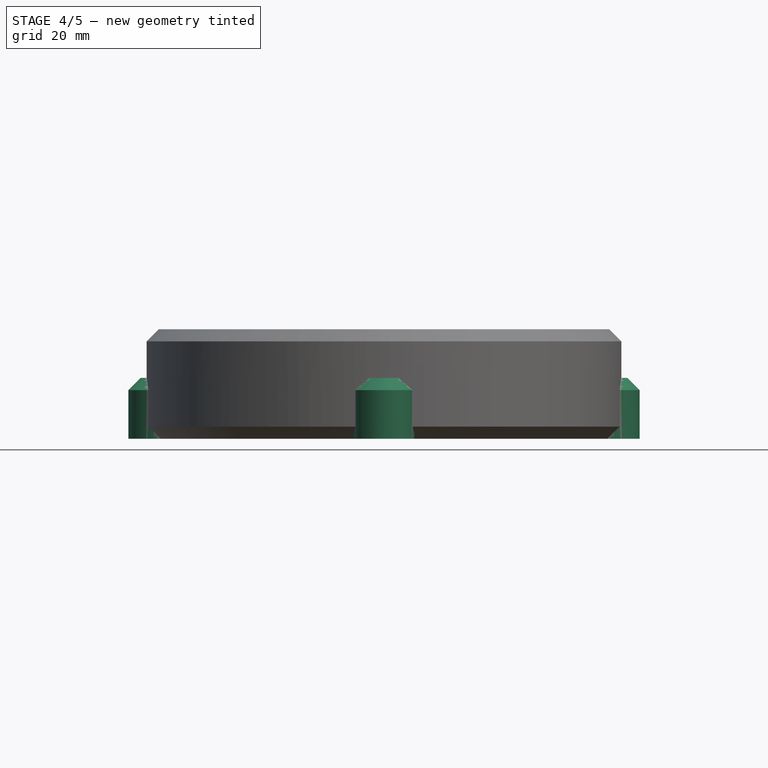
[diagram: stage 4 of 5 — front view after this stage's code; geometry added in this stage tinted green]
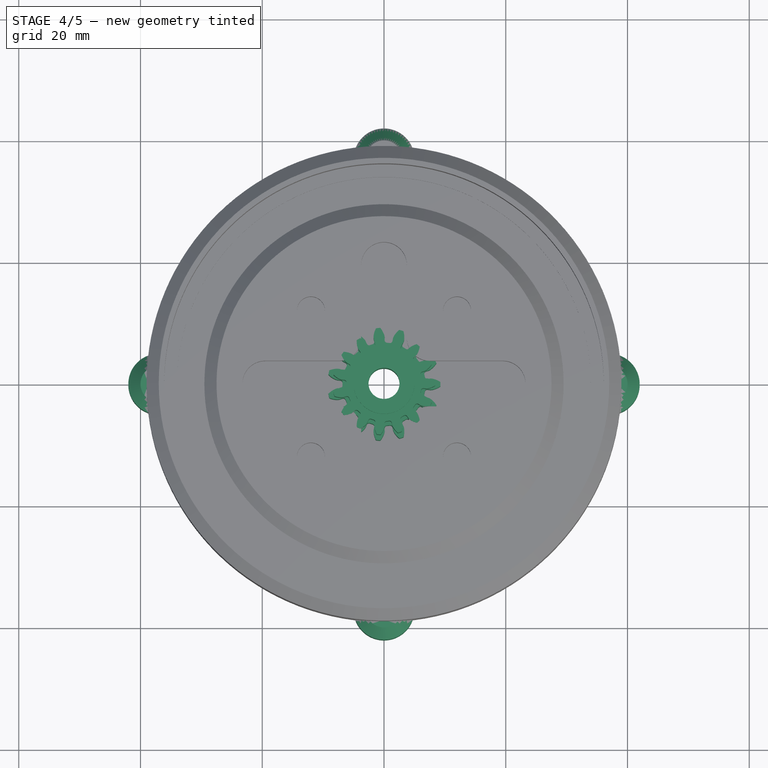
[diagram: stage 4 of 5 — top view after this stage's code; geometry added in this stage tinted green]
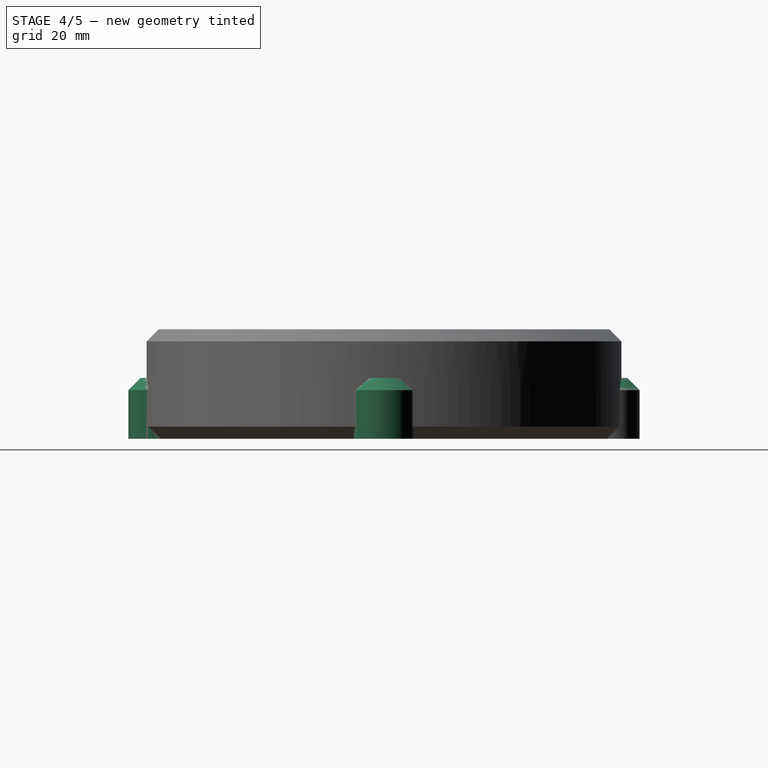
[diagram: stage 4 of 5 — right view after this stage's code; geometry added in this stage tinted green]
FEATURE [PartDesign::Pad] Pad
  AddSubType = 0
  AlongSketchNormal = false
  AutoTaperInnerAngle = true
  CheckUpToFaceLimits = true
  ClaimChildren = false
  Direction = (0,0,1)
  Fit = 0
  FitJoin = 0
  InnerFit = 0
  InnerFitJoin = 0
  InvalidShape = false
  Length = 6
  Length2 = 100
  NewSolid = false
  Profile = -> InvoluteGear
  Suppress = false
  TaperInnerAngle = 0
  TaperInnerAngleRev = 0
  TreeRank = 0
  Type = 0
  ValidateShape = true
  _ProfileBasedVersion = 0
FEATURE [Sketcher::SketchObject] Sketch008
  ArcFitTolerance = 0
  AttachmentSupport = -> [XY_Plane]
  ExternalBSplineMaxDegree = 0
  ExternalBSplineTolerance = 0
  FullyConstrained = true
  InternalTolerance = 1e-06
  InvalidShape = false
  MakeInternals = false
  MapMode = 5
  Support = -> [XY_Plane]
  TreeRank = 0
  ValidateShape = true
  sketch-geometry (1):
    g0: Circle CenterX=0 CenterY=0 CenterZ=0 NormalX=0 NormalY=0 NormalZ=1 AngleXU=0 Radius=2.6
  constraints (2):
    c: Coincident(g0,g-1)
    c: Diameter(g0) = 5.2
FEATURE [PartDesign::Pocket] Pocket005
  AddSubType = 1
  AutoTaperInnerAngle = true
  BaseFeature = -> Pad
  CheckUpToFaceLimits = true
  ClaimChildren = false
  Fit = 0
  FitJoin = 0
  InnerFit = 0
  InnerFitJoin = 0
  InvalidShape = false
  Length = 10
  Length2 = 100
  NewSolid = false
  Profile = -> Sketch008
  Reversed = true
  Suppress = false
  TaperInnerAngle = 0
  TaperInnerAngleRev = 0
  TreeRank = 0
  Type = 0
  ValidateShape = true
  _ProfileBasedVersion = 0
  _Version = 0
FEATURE [Part::Part2DObjectPython] InvoluteGear005  label="s1-planet-gear"  # Draft 2D object (typed FeaturePython)
  ExternalGear = true
  HighPrecision = false
  InvalidShape = false
  Modules = 1.09
  NumberOfTeeth = 15
  PressureAngle = 20
  TreeRank = 0
  ValidateShape = true
  expr: Modules = <<sp>>.s1_module - <<sp>>.s1_clearance
  expr: NumberOfTeeth = <<sp>>.s1planet_teeth
FEATURE [PartDesign::Pad] Pad008  label="S1-Planet"
  AddSubType = 0
  AlongSketchNormal = false
  AutoTaperInnerAngle = true
  CheckUpToFaceLimits = true
  ClaimChildren = false
  Direction = (0,0,1)
  Fit = 0
  FitJoin = 0
  InnerFit = 0
  InnerFitJoin = 0
  InvalidShape = false
  Length = 6
  Length2 = 100
  NewSolid = false
  Profile = -> InvoluteGear005
  Suppress = false
  TaperInnerAngle = 0
  TaperInnerAngleRev = 0
  TreeRank = 0
  Type = 0
  ValidateShape = true
  _ProfileBasedVersion = 0
FEATURE [Part::Part2DObjectPython] InvoluteGear004  label="s2-planet-gear"  # Draft 2D object (typed FeaturePython)
  ExternalGear = true
  HighPrecision = false
  InvalidShape = false
  Modules = 0.99
  NumberOfTeeth = 15
  Placement = pos=(0,0,6) rot=(0,0,1;0rad)
  PressureAngle = 20
  TreeRank = 0
  ValidateShape = true
  expr: Modules = <<sp>>.s2_module - <<sp>>.s2_clearance
  expr: NumberOfTeeth = <<sp>>.s2planet_teeth
FEATURE [PartDesign::Pad] Pad009  label="S2-Planet"
  AddSubType = 0
  AlongSketchNormal = false
  AutoTaperInnerAngle = true
  BaseFeature = -> Pad008
  CheckUpToFaceLimits = true
  ClaimChildren = false
  Direction = (0,0,1)
  Fit = 0
  FitJoin = 0
  InnerFit = 0
  InnerFitJoin = 0
  InvalidShape = false
  Length = 6
  Length2 = 100
  NewSolid = false
  Profile = -> InvoluteGear004
  Suppress = false
  TaperInnerAngle = 0
  TaperInnerAngleRev = 0
  TreeRank = 0
  Type = 0
  ValidateShape = true
  _ProfileBasedVersion = 0
FEATURE [PartDesign::Body] Body003  label="S2-Sun"
  AutoGroupSolids = false
  ClaimAllChildren = false
  ExportMode = 0
  Group = -> [InvoluteGear002,Pad005,Sketch010,Pocket006,Sketch028,Groove004]
  InvalidShape = false
  Origin = -> Origin003
  Placement = pos=(0,0,12) rot=(0,1,0;3.14159rad)
  Tip = -> Groove004
  TreeRank = 0
  ValidateShape = true
  _ExportChildren = -> [Pad005,Pocket006,Groove004]
  _GroupVersion = 1
FEATURE [Sketcher::SketchObject] Sketch009
  ArcFitTolerance = 0
  AttachmentSupport = -> [Pocket005]
  ExternalBSplineMaxDegree = 0
  ExternalBSplineTolerance = 0
  FullyConstrained = true
  InternalTolerance = 1e-06
  InvalidShape = false
  MakeInternals = false
  MapMode = 5
  Placement = pos=(0,0,6) rot=(0,0,1;0rad)
  Support = -> [Pocket005]
  TreeRank = 3
  ValidateShape = true
  sketch-geometry (2):
    g0: Circle CenterX=0 CenterY=0 CenterZ=0 NormalX=0 NormalY=0 NormalZ=1 AngleXU=0 Radius=2.55
    g1: Circle CenterX=0 CenterY=0 CenterZ=0 NormalX=0 NormalY=0 NormalZ=1 AngleXU=0 Radius=5
  constraints (4):
    c: Coincident(g0,g-1)
    c: Coincident(g1,g0)
    c: Diameter(g0) = 5.1
    c: Diameter(g1) = 10
FEATURE [PartDesign::Pad] Pad007
  AddSubType = 0
  AlongSketchNormal = false
  AutoTaperInnerAngle = true
  BaseFeature = -> Pocket005
  CheckUpToFaceLimits = true
  ClaimChildren = false
  Direction = (0,0,1)
  Fit = 0
  FitJoin = 0
  InnerFit = 0
  InnerFitJoin = 0
  InvalidShape = false
  Length = 7
  Length2 = 100
  NewSolid = false
  Profile = -> Sketch009
  Suppress = false
  TaperInnerAngle = 0
  TaperInnerAngleRev = 0
  TreeRank = 4
  Type = 0
  ValidateShape = true
  _ProfileBasedVersion = 0
FEATURE [PartDesign::Body] Body  label="S1-Sun"
  AutoGroupSolids = false
  ClaimAllChildren = false
  ExportMode = 0
  Group = -> [InvoluteGear,Pad,Sketch008,Pocket005,Sketch009,Pad007,Sketch025,Groove002]
  InvalidShape = false
  Origin = -> Origin
  Tip = -> Groove002
  TreeRank = 0
  ValidateShape = true
  _ExportChildren = -> [Pad,Pocket005,Pad007,Groove002]
  _GroupVersion = 1
FEATURE [Sketcher::SketchObject] Sketch029
  ArcFitTolerance = 1e-06
  AttachmentSupport = -> [XY_Plane005]
  ExternalBSplineMaxDegree = 5
  ExternalBSplineTolerance = 0.0001
  FixShape = 1
  FullyConstrained = true
  InternalTolerance = 1e-06
  InvalidShape = false
  MakeInternals = false
  MapMode = 5
  Support = -> [XY_Plane005]
  TreeRank = 5
  ValidateShape = false
  sketch-geometry (1):
    g0: Circle CenterX=0 CenterY=0 CenterZ=0 NormalX=0 NormalY=0 NormalZ=1 AngleXU=0 Radius=4.5
  constraints (2):
    c: Coincident(g0,g-1)
    c: Diameter(g0) = 9
FEATURE [PartDesign::Pocket] Pocket012
  AddSubType = 1
  AutoTaperInnerAngle = true
  BaseFeature = -> Pad009
  CheckUpToFaceLimits = true
  ClaimChildren = false
  Fit = 0
  FitJoin = 0
  FixShape = 1
  InnerFit = 0
  InnerFitJoin = 0
  InvalidShape = false
  Length = 12
  Length2 = 100
  Linearize = true
  NewSolid = false
  Profile = -> Sketch029
  Reversed = true
  Suppress = false
  TaperInnerAngle = 0
  TaperInnerAngleRev = 0
  TreeRank = 6
  Type = 0
  ValidateShape = false
  _ProfileBasedVersion = 1
  _Version = 1
FEATURE [PartDesign::Chamfer] Chamfer004
  AddSubType = 0
  Angle = 45
  Base = -> Chamfer003 [Edge47]
  BaseFeature = -> Chamfer003
  ChamferType = 0
  FixShape = 1
  FlipDirection = false
  InvalidShape = false
  NewSolid = false
  Size = 2
  Size2 = 1
  SupportTransform = false
  Suppress = false
  TreeRank = 25
  ValidateShape = false
FEATURE [PartDesign::PolarPattern] PolarPattern
  AddSubType = 0
  Angle = 360
  Axis = -> Z_Axis001
  BaseFeature = -> Chamfer004
  CopyShape = false
  FixShape = 1
  InvalidShape = false
  NewSolid = false
  Occurrences = 4
  OriginalSubs = -> [Chamfer004,Chamfer003,Pocket015,Pad016]
  Originals = -> [Chamfer004,Chamfer003,Pocket015,Pad016]
  ParallelTransform = true
  SubTransform = true
  Suppress = false
  TreeRank = 26
  ValidateShape = false
  _Version = 3
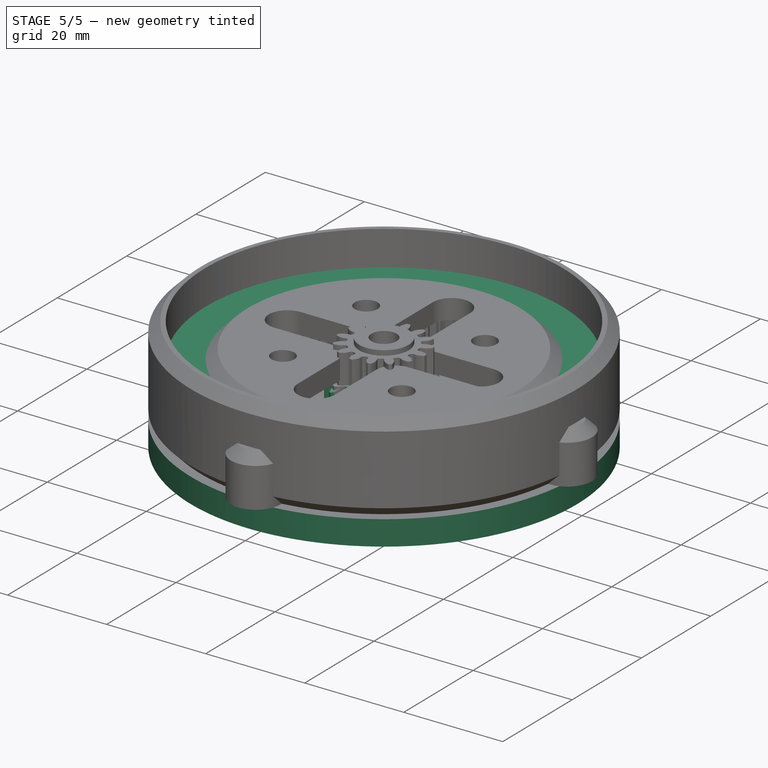
[diagram: stage 5 of 5 — iso view after this stage's code; geometry added in this stage tinted green]
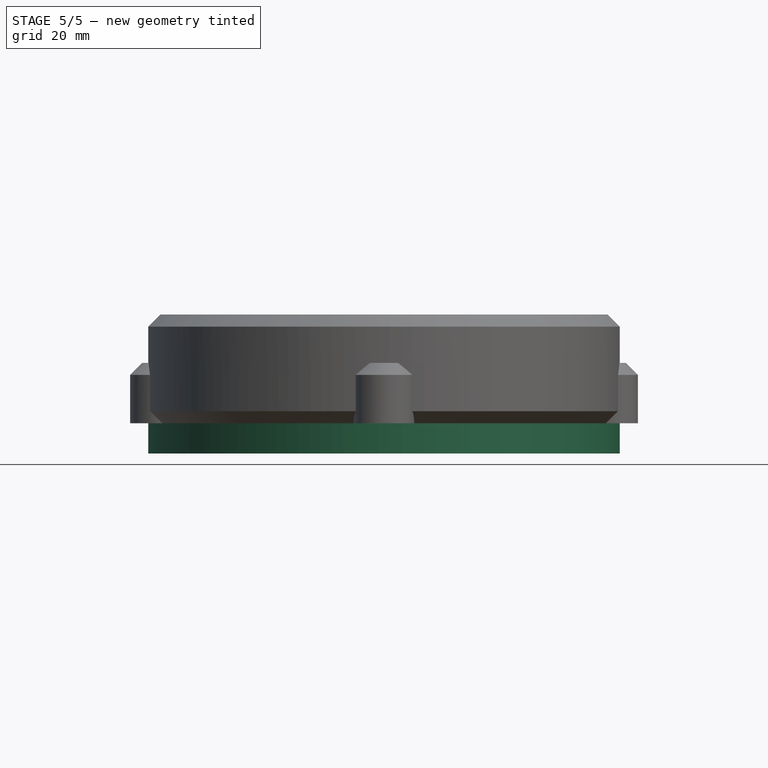
[diagram: stage 5 of 5 — front view after this stage's code; geometry added in this stage tinted green]
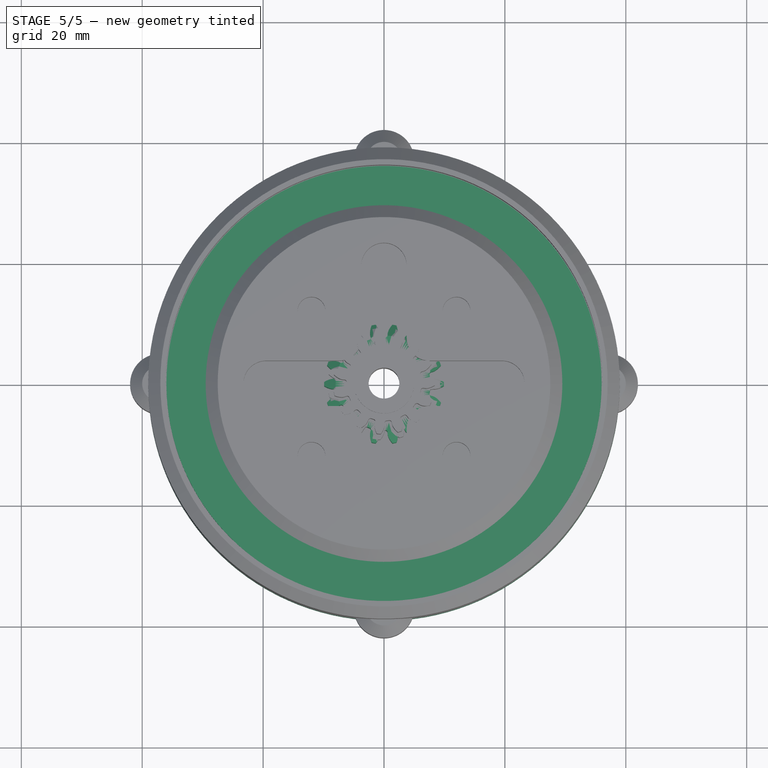
[diagram: stage 5 of 5 — top view after this stage's code; geometry added in this stage tinted green]
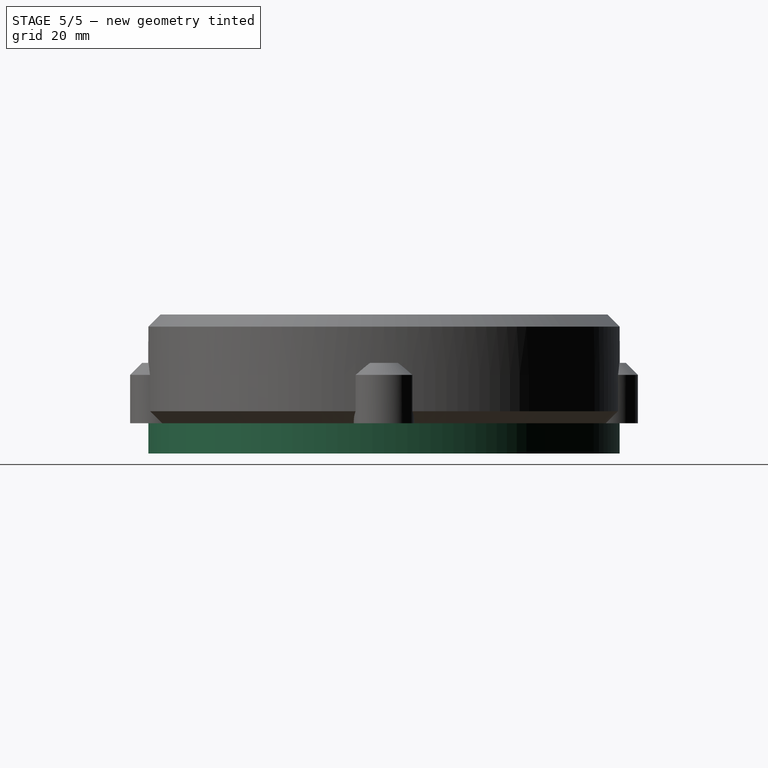
[diagram: stage 5 of 5 — right view after this stage's code; geometry added in this stage tinted green]
FEATURE [PartDesign::Pad] Pad005
  AddSubType = 0
  AlongSketchNormal = false
  AutoTaperInnerAngle = true
  CheckUpToFaceLimits = true
  ClaimChildren = false
  Direction = (0,0,1)
  Fit = 0
  FitJoin = 0
  InnerFit = 0
  InnerFitJoin = 0
  InvalidShape = false
  Length = 6
  Length2 = 100
  NewSolid = false
  Profile = -> InvoluteGear002
  Suppress = false
  TaperInnerAngle = 0
  TaperInnerAngleRev = 0
  TreeRank = 0
  Type = 0
  ValidateShape = true
  _ProfileBasedVersion = 0
FEATURE [App::Link] Link  label="Planet - Link 1"
  AutoLinkLabel = false
  AutoPlacement = true
  LinkPlacement = pos=(-8.25,14.2894,0) rot=(0,0,1;0rad)
  LinkedObject = -> Body005
  Placement = pos=(-8.25,14.2894,0) rot=(0,0,1;0rad)
  SyncGroupVisibility = false
  TreeRank = 0
  _LinkVersion = 1
  expr: Placement.Base.x = <<sp>>.F14
  expr: Placement.Base.y = <<sp>>.F15
FEATURE [App::Link] Link005  label="Planet - Link 2"
  AutoLinkLabel = false
  AutoPlacement = true
  LinkPlacement = pos=(-8.25,-14.2894,0) rot=(0,0,1;0rad)
  LinkedObject = -> Body005
  Placement = pos=(-8.25,-14.2894,0) rot=(0,0,1;0rad)
  SyncGroupVisibility = false
  TreeRank = 0
  _LinkVersion = 1
  expr: Placement.Base.x = <<sp>>.G14
  expr: Placement.Base.y = <<sp>>.G15
FEATURE [Sketcher::SketchObject] Sketch010
  ArcFitTolerance = 0
  AttachmentSupport = -> [Pad005]
  ExternalBSplineMaxDegree = 0
  ExternalBSplineTolerance = 0
  FullyConstrained = true
  InternalTolerance = 1e-06
  InvalidShape = false
  MakeInternals = false
  MapMode = 5
  Placement = pos=(0,0,6) rot=(0,0,1;0rad)
  Support = -> [Pad005]
  TreeRank = 0
  ValidateShape = true
  sketch-geometry (1):
    g0: Circle CenterX=0 CenterY=0 CenterZ=0 NormalX=0 NormalY=0 NormalZ=1 AngleXU=0 Radius=6.5
  constraints (2):
    c: Coincident(g0,g-1)
    c: Diameter(g0) = 13
FEATURE [PartDesign::Pocket] Pocket006
  AddSubType = 1
  AutoTaperInnerAngle = true
  BaseFeature = -> Pad005
  CheckUpToFaceLimits = true
  ClaimChildren = false
  Fit = 0
  FitJoin = 0
  InnerFit = 0
  InnerFitJoin = 0
  InvalidShape = false
  Length = 10
  Length2 = 100
  NewSolid = false
  Profile = -> Sketch010
  Suppress = false
  TaperInnerAngle = 0
  TaperInnerAngleRev = 0
  TreeRank = 0
  Type = 0
  ValidateShape = true
  _ProfileBasedVersion = 0
  _Version = 0
FEATURE [Sketcher::SketchObject] Sketch011
  ArcFitTolerance = 0
  AttachmentSupport = -> [XY_Plane006]
  ExternalBSplineMaxDegree = 0
  ExternalBSplineTolerance = 0
  FullyConstrained = true
  InternalTolerance = 1e-06
  InvalidShape = false
  MakeInternals = false
  MapMode = 5
  Support = -> [XY_Plane006]
  TreeRank = 0
  ValidateShape = true
  sketch-geometry (2):
    g0: Circle CenterX=0 CenterY=0 CenterZ=0 NormalX=0 NormalY=0 NormalZ=1 AngleXU=0 Radius=27.5
    g1: Circle CenterX=0 CenterY=0 CenterZ=0 NormalX=0 NormalY=0 NormalZ=1 AngleXU=0 Radius=36
  constraints (4):
    c: Coincident(g0,g-1)
    c: Diameter(g0) = 55
    c: Coincident(g1,g0)
    c: Diameter(g1) = 72
FEATURE [PartDesign::Pad] Pad010
  AddSubType = 0
  AlongSketchNormal = false
  AutoTaperInnerAngle = true
  CheckUpToFaceLimits = true
  ClaimChildren = false
  Direction = (0,0,1)
  Fit = 0
  FitJoin = 0
  InnerFit = 0
  InnerFitJoin = 0
  InvalidShape = false
  Length = 9
  Length2 = 100
  NewSolid = false
  Profile = -> Sketch011
  Suppress = false
  TaperInnerAngle = 0
  TaperInnerAngleRev = 0
  TreeRank = 0
  Type = 0
  ValidateShape = true
  _ProfileBasedVersion = 0
FEATURE [Sketcher::SketchObject] Sketch017
  ArcFitTolerance = 0
  AttachmentSupport = -> [Pocket008]
  ExternalBSplineMaxDegree = 0
  ExternalBSplineTolerance = 0
  FullyConstrained = true
  InternalTolerance = 1e-06
  InvalidShape = false
  MakeInternals = false
  MapMode = 5
  Placement = pos=(0,0,-2) rot=(0,0,1;0rad)
  Support = -> [Pocket008]
  TreeRank = 0
  ValidateShape = true
  sketch-geometry (9):
    g0: LineSegment [constr] StartX=-15.5 StartY=-15.5 StartZ=0 EndX=-15.5 EndY=15.5 EndZ=0
    g1: LineSegment [constr] StartX=-15.5 StartY=15.5 StartZ=0 EndX=15.5 EndY=15.5 EndZ=0
    g2: LineSegment [constr] StartX=15.5 StartY=15.5 StartZ=0 EndX=15.5 EndY=-15.5 EndZ=0
    g3: LineSegment [constr] StartX=15.5 StartY=-15.5 StartZ=0 EndX=-15.5 EndY=-15.5 EndZ=0
    g4: GeomPoint [constr] X=2e-16 Y=3e-16 Z=0
    g5: Circle CenterX=-15.5 CenterY=15.5 CenterZ=0 NormalX=0 NormalY=0 NormalZ=1 AngleXU=0 Radius=2.5
    g6: Circle CenterX=15.5 CenterY=15.5 CenterZ=0 NormalX=0 NormalY=0 NormalZ=1 AngleXU=0 Radius=2.5
    g7: Circle CenterX=15.5 CenterY=-15.5 CenterZ=0 NormalX=0 NormalY=0 NormalZ=1 AngleXU=0 Radius=2.5
    g8: Circle CenterX=-15.5 CenterY=-15.5 CenterZ=0 NormalX=0 NormalY=0 NormalZ=1 AngleXU=0 Radius=2.5
  constraints (20):
    c: Coincident(g0,g1)
    c: Coincident(g1,g2)
    c: Coincident(g2,g3)
    c: Coincident(g3,g0)
    c: Horizontal(g1)
    c: Horizontal(g3)
    c: Vertical(g0)
    c: Vertical(g2)
    c: Symmetric(g1,g0,g4)
    c: Coincident(g4,g-1)
    c: Equal(g1,g2)
    c: Distance(g1) = 31
    c: Coincident(g5,g0)
    c: Coincident(g6,g1)
    c: Coincident(g7,g2)
    c: Coincident(g8,g0)
    c: Equal(g8,g7)
    c: Equal(g7,g6)
    c: Equal(g6,g5)
    c: Diameter(g6) = 5
FEATURE [PartDesign::Hole] Hole
  AddSubType = 1
  BaseFeature = -> Pocket008
  ClaimChildren = false
  CustomThreadClearance = 0
  Depth = 25
  DepthType = 0
  Diameter = 3.4
  DrillForDepth = false
  DrillPoint = 1
  DrillPointAngle = 118
  Fit = 0
  FitJoin = 0
  HoleCutCountersinkAngle = 90
  HoleCutCustomValues = false
  HoleCutDepth = 0.4
  HoleCutDiameter = 6.9
  HoleCutType = 2
  InnerFit = 0
  InnerFitJoin = 0
  InvalidShape = false
  ModelThread = false
  NewSolid = false
  Profile = -> Sketch017
  Suppress = false
  Tapered = false
  TaperedAngle = 90
  ThreadClass = 0
  ThreadDepth = 25
  ThreadDepthType = 0
  ThreadDirection = 0
  ThreadFit = 0
  ThreadSize = 9
  ThreadType = 1
  Threaded = false
  TreeRank = 0
  UseCustomThreadClearance = false
  ValidateShape = true
  _ProfileBasedVersion = 0
FEATURE [Sketcher::SketchObject] Sketch020
  ArcFitTolerance = 0
  AttachmentSupport = -> [Pocket009]
  ExternalBSplineMaxDegree = 0
  ExternalBSplineTolerance = 0
  FullyConstrained = true
  InternalTolerance = 1e-06
  InvalidShape = false
  MakeInternals = false
  MapMode = 5
  Placement = pos=(0,0,11) rot=(0,0,1;0rad)
  Support = -> [Pocket009]
  TreeRank = 0
  ValidateShape = true
  sketch-geometry (21):
    g0: LineSegment StartX=-3.75 StartY=19.5 StartZ=0 EndX=-3.75 EndY=7.5 EndZ=0
    g1: LineSegment StartX=3.75 StartY=19.5 StartZ=0 EndX=3.75 EndY=7.5 EndZ=0
    g2: LineSegment StartX=7.5 StartY=3.75 StartZ=0 EndX=19.5 EndY=3.75 EndZ=0
    g3: LineSegment StartX=7.5 StartY=-3.75 StartZ=0 EndX=19.5 EndY=-3.75 EndZ=0
    g4: LineSegment StartX=-7.5 StartY=3.75 StartZ=0 EndX=-19.5 EndY=3.75 EndZ=0
    g5: LineSegment StartX=-19.5 StartY=-3.75 StartZ=0 EndX=-7.5 EndY=-3.75 EndZ=0
    g6: LineSegment StartX=-3.75 StartY=-7.5 StartZ=0 EndX=-3.75 EndY=-19.5 EndZ=0
    g7: LineSegment StartX=3.75 StartY=-7.5 StartZ=0 EndX=3.75 EndY=-19.5 EndZ=0
    g8: ArcOfCircle CenterX=-7.5 CenterY=7.5 CenterZ=0 NormalX=0 NormalY=0 NormalZ=1 AngleXU=0 Radius=3.75 StartAngle=4.71239 EndAngle=6.28319
    g9: ArcOfCircle CenterX=3e-16 CenterY=19.5 CenterZ=0 NormalX=0 NormalY=0 NormalZ=1 AngleXU=0 Radius=3.75 StartAngle=0 EndAngle=3.14159
    g10: ArcOfCircle CenterX=7.5 CenterY=7.5 CenterZ=0 NormalX=0 NormalY=0 NormalZ=1 AngleXU=0 Radius=3.75 StartAngle=3.14159 EndAngle=4.71239
    g11: ArcOfCircle CenterX=19.5 CenterY=9e-16 CenterZ=0 NormalX=0 NormalY=0 NormalZ=1 AngleXU=0 Radius=3.75 StartAngle=4.71239 EndAngle=7.85398
    g12: ArcOfCircle CenterX=7.5 CenterY=-7.5 CenterZ=0 NormalX=0 NormalY=0 NormalZ=1 AngleXU=0 Radius=3.75 StartAngle=1.5708 EndAngle=3.14159
    g13: ArcOfCircle CenterX=4e-16 CenterY=-19.5 CenterZ=0 NormalX=0 NormalY=0 NormalZ=1 AngleXU=0 Radius=3.75 StartAngle=3.14159 EndAngle=6.28319
    g14: ArcOfCircle CenterX=-7.5 CenterY=-7.5 CenterZ=0 NormalX=0 NormalY=0 NormalZ=1 AngleXU=0 Radius=3.75 StartAngle=0 EndAngle=1.5708
    g15: ArcOfCircle CenterX=-19.5 CenterY=-1e-16 CenterZ=0 NormalX=0 NormalY=0 NormalZ=1 AngleXU=0 Radius=3.75 StartAngle=1.5708 EndAngle=4.71239
    g16: LineSegment [constr] StartX=-7.5 StartY=-7.5 StartZ=0 EndX=-7.5 EndY=7.5 EndZ=0
    g17: LineSegment [constr] StartX=-7.5 StartY=7.5 StartZ=0 EndX=7.5 EndY=7.5 EndZ=0
    g18: LineSegment [constr] StartX=7.5 StartY=7.5 StartZ=0 EndX=7.5 EndY=-7.5 EndZ=0
    g19: LineSegment [constr] StartX=7.5 StartY=-7.5 StartZ=0 EndX=-7.5 EndY=-7.5 EndZ=0
    g20: GeomPoint [constr] X=0 Y=0 Z=0
  constraints (52):
    c: Vertical(g0)
    c: Vertical(g1)
    c: Horizontal(g2)
    c: Horizontal(g3)
    c: Horizontal(g4)
    c: Horizontal(g5)
    c: Vertical(g6)
    c: Vertical(g7)
    c: Equal(g0,g1)
    c: Equal(g1,g2)
    c: Equal(g2,g3)
    c: Equal(g3,g4)
    c: Equal(g4,g5)
    c: Equal(g5,g6)
    c: Equal(g6,g7)
    c: Tangent(g4,g8) = 1.5708
    c: Tangent(g0,g9) = -1.5708
    c: Tangent(g1,g10) = -1.5708
    c: Tangent(g2,g11) = 1.5708
    c: Tangent(g3,g12) = 1.5708
    c: Coincident(g12,g7)
    c: Tangent(g7,g13) = 1.5708
    c: Tangent(g6,g14) = 1.5708
    c: Coincident(g14,g5)
    c: Tangent(g5,g15) = -1.5708
    c: Coincident(g15,g4)
    c: Equal(g15,g11)
    c: Equal(g11,g9)
    c: Equal(g9,g13)
    c: Equal(g13,g14)
    c: Equal(g14,g12)
    c: Equal(g12,g10)
    c: Equal(g10,g8)
    c: Tangent(g10,g2) = -1.5708
    c: Tangent(g8,g0) = 1.5708
    c: Tangent(g9,g1) = 1.5708
    c: Tangent(g13,g6) = -1.5708
    c: Tangent(g11,g3) = -1.5708
    c: Vertical(g4,g5)
    c: Coincident(g16,g17)
    c: Coincident(g17,g18)
    c: Coincident(g18,g19)
    c: Coincident(g19,g16)
    c: Horizontal(g17)
    c: Vertical(g16)
    c: Symmetric(g17,g16,g20)
    c: Coincident(g20,g-1)
    c: Coincident(g17,g10)
    c: Coincident(g18,g12)
    c: Coincident(g16,g14)
    c: Distance(g17) = 15
    c: Distance(g2) = 12
FEATURE [Sketcher::SketchObject] Sketch025
  ArcFitTolerance = 0
  AttachmentSupport = -> [XZ_Plane]
  ExternalBSplineMaxDegree = 0
  ExternalBSplineTolerance = 0
  FullyConstrained = true
  InternalTolerance = 1e-06
  InvalidShape = false
  MakeInternals = false
  MapMode = 5
  Placement = pos=(0,0,0) rot=(1,0,0;1.5708rad)
  Support = -> [XZ_Plane]
  TreeRank = 0
  ValidateShape = true
  sketch-geometry (4):
    g0: LineSegment StartX=9.36 StartY=0 StartZ=0 EndX=9.36 EndY=1.4376 EndZ=0
    g1: LineSegment StartX=9.36 StartY=1.4376 StartZ=0 EndX=6.87 EndY=0 EndZ=0
    g2: LineSegment StartX=6.87 StartY=0 StartZ=0 EndX=8.25 EndY=0 EndZ=0
    g3: LineSegment StartX=8.25 StartY=0 StartZ=0 EndX=9.36 EndY=0 EndZ=0
  constraints (12):
    c: PointOnObject(g2,g-1)
    c: PointOnObject(g3,g-1)
    c: Coincident(g3,g0)
    c: Vertical(g0)
    c: Coincident(g0,g1)
    c: Coincident(g1,g2)
    c: Coincident(g2,g3)
    c: PointOnObject(g2,g-1)
    c: Distance(g2) = 1.38  'm*1.25'
    c: Distance(g3) = 1.11  'm'
    c: Angle(g2,g1) = 0.523599  'chamfer_angle'
    c: Distance(g-1,g2) = 8.25  'm*z'
FEATURE [Sketcher::SketchObject] Sketch027
  ArcFitTolerance = 0
  AttachmentSupport = -> [XZ_Plane005]
  ExternalBSplineMaxDegree = 0
  ExternalBSplineTolerance = 0
  FullyConstrained = true
  InternalTolerance = 1e-06
  InvalidShape = false
  MakeInternals = false
  MapMode = 5
  Placement = pos=(0,0,0) rot=(1,0,0;1.5708rad)
  Support = -> [XZ_Plane005]
  TreeRank = 0
  ValidateShape = true
  sketch-geometry (4):
    g0: LineSegment StartX=9.36 StartY=0 StartZ=0 EndX=9.36 EndY=1.4376 EndZ=0
    g1: LineSegment StartX=9.36 StartY=1.4376 StartZ=0 EndX=6.87 EndY=0 EndZ=0
    g2: LineSegment StartX=6.87 StartY=0 StartZ=0 EndX=8.25 EndY=0 EndZ=0
    g3: LineSegment StartX=8.25 StartY=0 StartZ=0 EndX=9.36 EndY=0 EndZ=0
  constraints (12):
    c: PointOnObject(g2,g-1)
    c: PointOnObject(g3,g-1)
    c: Coincident(g3,g0)
    c: Vertical(g0)
    c: Coincident(g0,g1)
    c: Coincident(g1,g2)
    c: Coincident(g2,g3)
    c: PointOnObject(g2,g-1)
    c: Distance(g2) = 1.38  'm*1.25'
    c: Distance(g3) = 1.11  'm'
    c: Angle(g2,g1) = 0.523599  'chamfer_angle'
    c: Distance(g-1,g2) = 8.25  'm*z'
FEATURE [Sketcher::SketchObject] Sketch028
  ArcFitTolerance = 0
  AttachmentSupport = -> [XZ_Plane003]
  ExternalBSplineMaxDegree = 0
  ExternalBSplineTolerance = 0
  FullyConstrained = true
  InternalTolerance = 1e-06
  InvalidShape = false
  MakeInternals = false
  MapMode = 5
  Placement = pos=(0,0,0) rot=(1,0,0;1.5708rad)
  Support = -> [XZ_Plane003]
  TreeRank = 0
  ValidateShape = true
  sketch-geometry (4):
    g0: LineSegment StartX=10.25 StartY=6 StartZ=0 EndX=10.25 EndY=4.70096 EndZ=0
    g1: LineSegment StartX=10.25 StartY=4.70096 StartZ=0 EndX=8 EndY=6 EndZ=0
    g2: LineSegment StartX=8 StartY=6 StartZ=0 EndX=9 EndY=6 EndZ=0
    g3: LineSegment StartX=9 StartY=6 StartZ=0 EndX=10.25 EndY=6 EndZ=0
  constraints (12):
    c: Coincident(g3,g0)
    c: Vertical(g0)
    c: Coincident(g0,g1)
    c: Coincident(g1,g2)
    c: Coincident(g2,g3)
    c: Distance(g2) = 1  'm*1.25'
    c: Distance(g3) = 1.25  'm'
    c: DistanceX(g-1,g2) = 9
    c: Horizontal(g3)
    c: Horizontal(g2)
    c: Angle(g1,g3) = 0.523599
    c: DistanceY(g-1,g2) = 6
FEATURE [PartDesign::Groove] Groove004
  AddSubType = 1
  Angle = 360
  Axis = (0,-2e-16,1)
  Base = (0,0,0)
  BaseFeature = -> Pocket006
  ClaimChildren = false
  Fit = 0
  FitJoin = 0
  InnerFit = 0
  InnerFitJoin = 0
  InvalidShape = false
  NewSolid = false
  Profile = -> Sketch028
  ReferenceAxis = -> Sketch028 [V_Axis]
  Suppress = false
  TreeRank = 0
  ValidateShape = true
  _ProfileBasedVersion = 0
FEATURE [PartDesign::Groove] Groove002
  AddSubType = 1
  Angle = 360
  Axis = (0,-2e-16,1)
  Base = (0,0,0)
  BaseFeature = -> Pad007
  ClaimChildren = false
  Fit = 0
  FitJoin = 0
  InnerFit = 0
  InnerFitJoin = 0
  InvalidShape = false
  NewSolid = false
  Profile = -> Sketch025
  ReferenceAxis = -> Sketch025 [V_Axis]
  Suppress = false
  TreeRank = 0
  ValidateShape = true
  _ProfileBasedVersion = 0
FEATURE [PartDesign::Groove] Groove003
  AddSubType = 1
  Angle = 360
  Axis = (0,-2e-16,1)
  Base = (0,0,0)
  BaseFeature = -> Pocket012
  ClaimChildren = false
  Fit = 0
  FitJoin = 0
  InnerFit = 0
  InnerFitJoin = 0
  InvalidShape = false
  NewSolid = false
  Profile = -> Sketch027
  ReferenceAxis = -> Sketch027 [V_Axis]
  Suppress = false
  TreeRank = 0
  ValidateShape = true
  _ProfileBasedVersion = 0
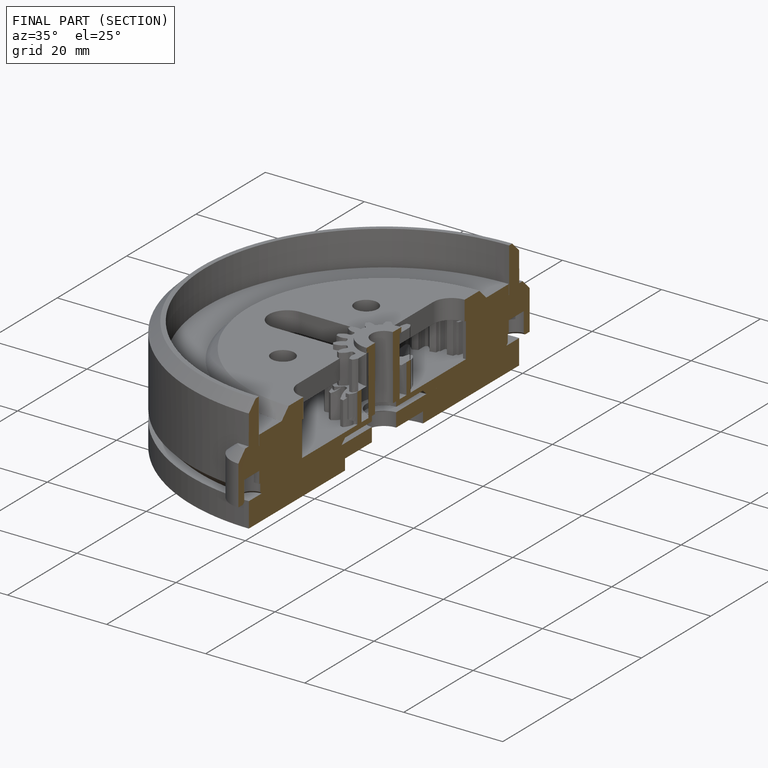
[diagram: finished part — half-section view (interior)]
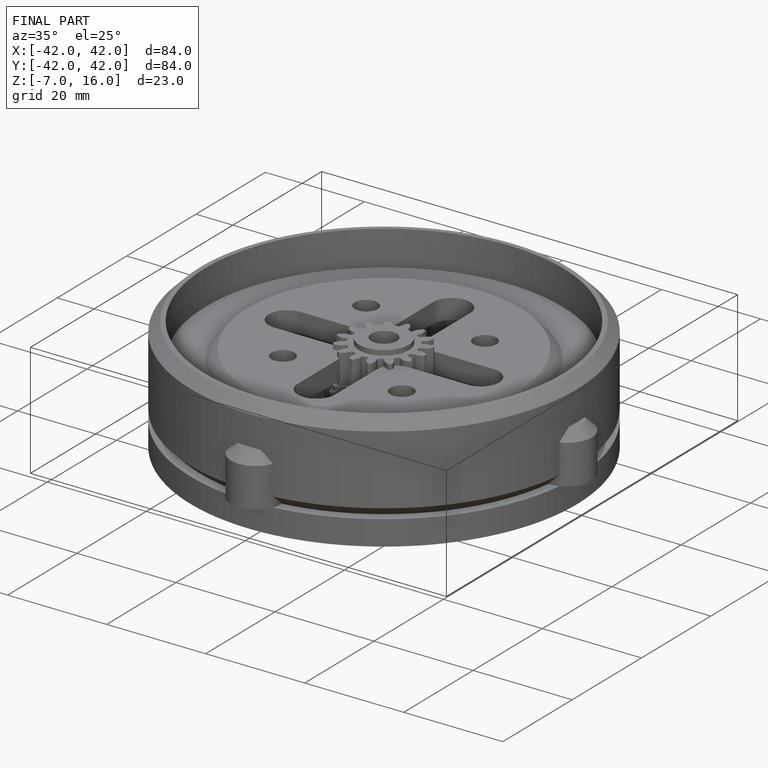
[diagram: finished part — iso view with bounding-box wireframe]
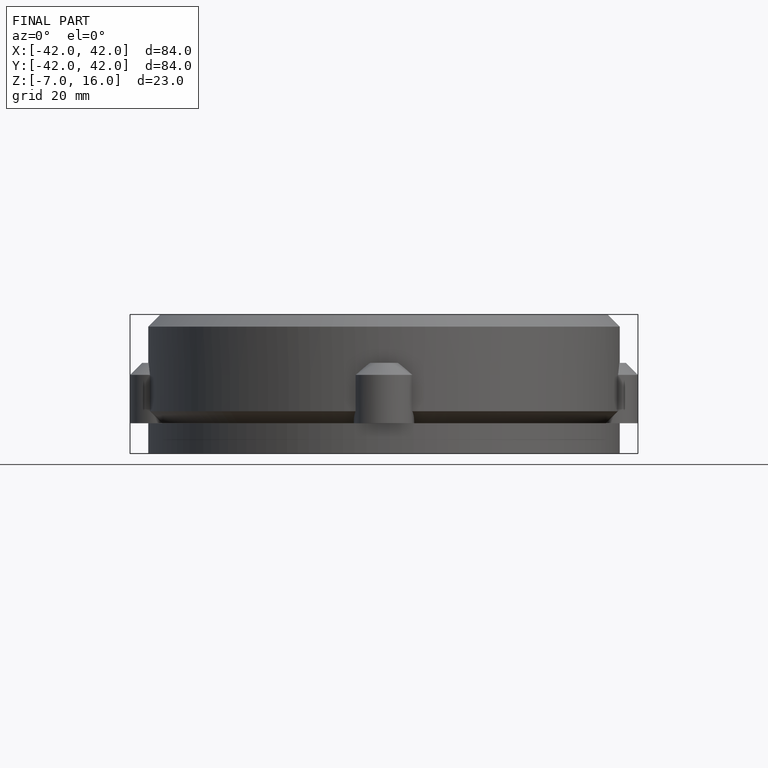
[diagram: finished part — front view with bounding-box wireframe]
